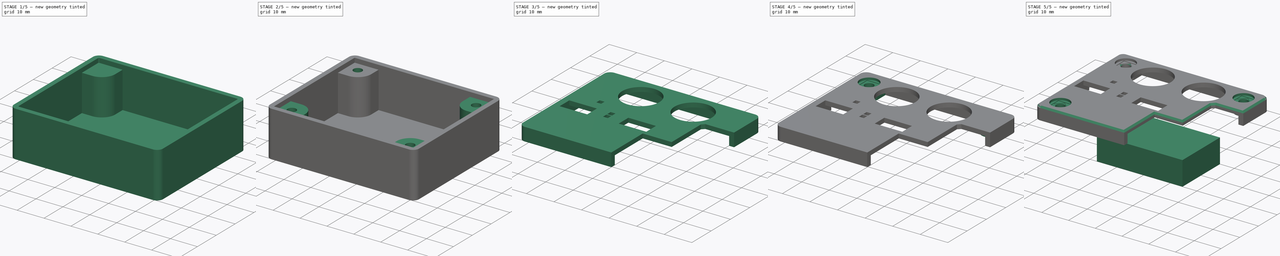
[diagram: build sequence overview — one tinted view per stage of 5, left to right]
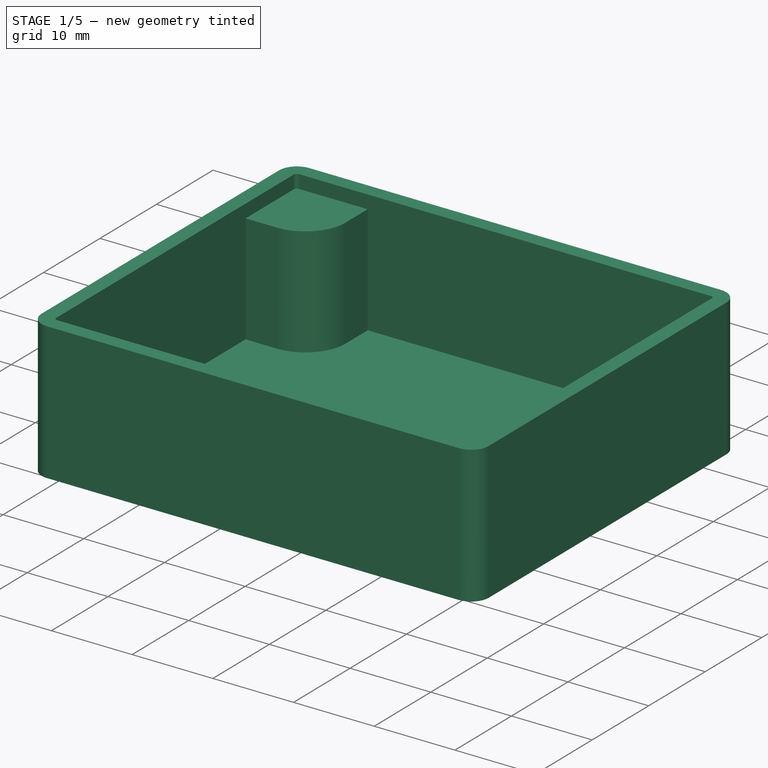
[diagram: stage 1 of 5 — iso view after this stage's code; geometry added in this stage tinted green]
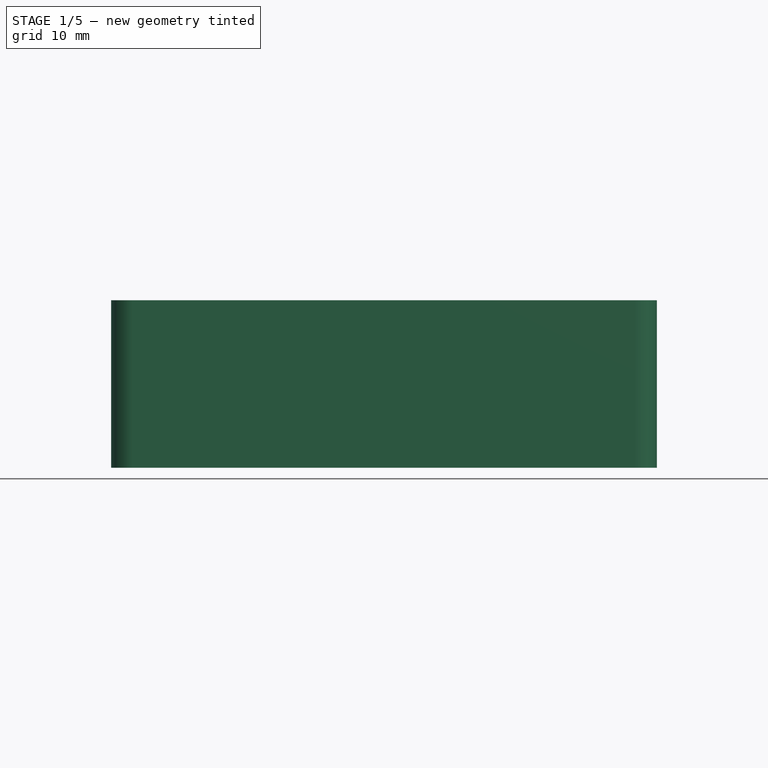
[diagram: stage 1 of 5 — front view after this stage's code; geometry added in this stage tinted green]
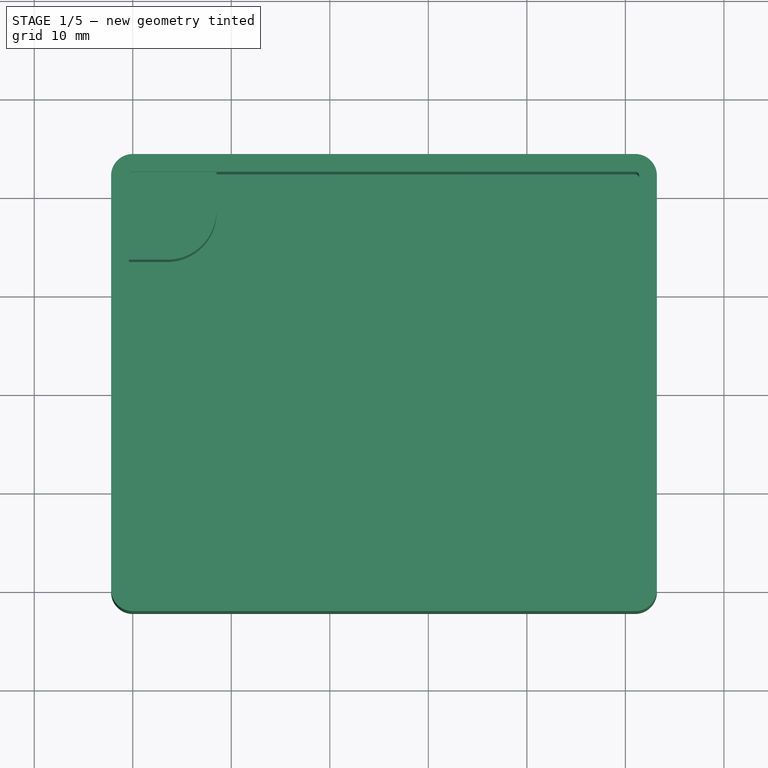
[diagram: stage 1 of 5 — top view after this stage's code; geometry added in this stage tinted green]
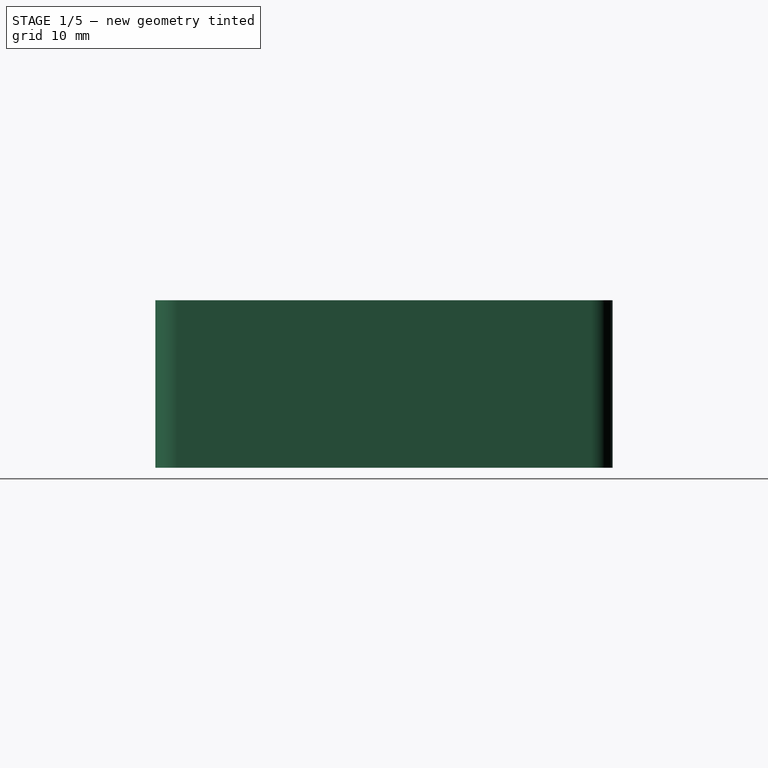
[diagram: stage 1 of 5 — right view after this stage's code; geometry added in this stage tinted green]
FCSTD DOCUMENT  (FreeCAD 0.20R29603 (Git))
Label: SCuSA_RevA1_case
License: All rights reserved
LicenseURL: http://en.wikipedia.org/wiki/All_rights_reserved
objects: Sketcher::SketchObject×17, PartDesign::Pocket×12, PartDesign::SubShapeBinder×7, PartDesign::Plane×7, PartDesign::Pad×5, PartDesign::Mirrored×4, PartDesign::MultiTransform×2, PartDesign::Body×2, App::Link×1, Spreadsheet::Sheet×1, PartDesign::Thickness×1, Part::Box×1, PartDesign::Chamfer×1
note: 78 computed .brp shape members not serialized (recipe doc carries the construction recipe); baked Part::Feature solids carry a one-line shape summary decoded from their .brp
EXTERNAL_REF file=SCuSA_RevA1_PCBA.FCStd obj=Board_3e51

FEATURE [App::Link] Link  label="SCuSA_PCBA"
  LinkedObject = -> <external SCuSA_RevA1_PCBA.FCStd>#Board_3e51
FEATURE [Spreadsheet::Sheet] Spreadsheet
  cells = A1=layer_height; B1(layer_height)=0.4; C1=for 3d printing; A2=wall_thickness; B2(wall_thickness)=1.8; A3=pcb_to_wall_clearance; B3(pcb_to_wall_clearance)=0.4; A4=hex_nut_diameter; B4(hex_nut_diameter)=7.2; A5=hex_nut_pocket_depth; B5(hex_nut_pocket_depth)=10; A6=lid_counter_sunk; B6(lid_counter_sunk)=0.8; A7=lid_layer_height; B7(lid_layer_height)=0.2
FEATURE [PartDesign::SubShapeBinder] Binder  label="PCBA_Binder"
  BindCopyOnChange = 0
  BindMode = 0
  ClaimChildren = false
  Context = -> Body [Binder.]
  Fuse = false
  MakeFace = true
  OffsetFill = false
  OffsetIntersection = false
  OffsetJoinType = 0
  OffsetOpenResult = false
  PartialLoad = false
  Relative = true
  Support = -> [Link[Board_Geoms_3e51.Pcb_3e51.Face46]]
  _Version = 2
FEATURE [Sketcher::SketchObject] Sketch  label="WallSketch"
  ExternalGeometry = -> [Binder]
  FullyConstrained = true
  MapMode = 5
  Support = -> [XY_Plane]
  expr: Constraints[21] = Spreadsheet.wall_thickness + Spreadsheet.pcb_to_wall_clearance
  sketch-geometry (10):
    g0: ArcOfCircle CenterX=0 CenterY=42 CenterZ=0 NormalX=0 NormalY=0 NormalZ=1 AngleXU=0 Radius=2.2 StartAngle=1.5708 EndAngle=3.14159
    g1: LineSegment StartX=-4e-16 StartY=44.2 StartZ=0 EndX=51 EndY=44.2 EndZ=0
    g2: ArcOfCircle CenterX=51 CenterY=42 CenterZ=0 NormalX=0 NormalY=0 NormalZ=1 AngleXU=0 Radius=2.2 StartAngle=-1.8e-15 EndAngle=1.5708
    g3: LineSegment StartX=53.2 StartY=42 StartZ=0 EndX=53.2 EndY=0 EndZ=0
    g4: ArcOfCircle CenterX=51 CenterY=0 CenterZ=0 NormalX=0 NormalY=0 NormalZ=1 AngleXU=0 Radius=2.2 StartAngle=4.71239 EndAngle=6.28319
    g5: LineSegment StartX=51 StartY=-2.2 StartZ=0 EndX=0 EndY=-2.2 EndZ=0
    g6: ArcOfCircle CenterX=-2e-16 CenterY=1e-16 CenterZ=0 NormalX=0 NormalY=0 NormalZ=1 AngleXU=0 Radius=2.2 StartAngle=3.14159 EndAngle=4.71239
    g7: LineSegment StartX=-2.2 StartY=-6e-16 StartZ=0 EndX=-2.2 EndY=42 EndZ=0
    g8: GeomPoint X=-2.2 Y=44.2 Z=0
    g9: GeomPoint X=53.2 Y=-2.2 Z=0
  constraints (22):
    c: Tangent(g0,g1) = 1.5708
    c: Tangent(g1,g2) = 1.5708
    c: Tangent(g2,g3) = 1.5708
    c: Tangent(g3,g4) = 1.5708
    c: Tangent(g4,g5) = 1.5708
    c: Tangent(g5,g6) = 1.5708
    c: Tangent(g6,g7) = 1.5708
    c: Tangent(g7,g0) = 1.5708
    c: Horizontal(g1)
    c: Horizontal(g5)
    c: Vertical(g3)
    c: Vertical(g7)
    c: Equal(g0,g2)
    c: Equal(g2,g4)
    c: Equal(g4,g6)
    c: PointOnObject(g8,g1)
    c: PointOnObject(g8,g7)
    c: PointOnObject(g9,g3)
    c: PointOnObject(g9,g5)
    c: Coincident(g0,g-4)
    c: Coincident(g-6,g4)
    c: DistanceX(g0,g0) = 2.2
FEATURE [PartDesign::Pad] Pad  label="WallPad"
  Direction = (0,0,1)
  Length = 17
  Length2 = 10
  Profile = -> Sketch
  ReferenceAxis = -> Sketch [N_Axis]
  Reversed = true
  Type = 0
FEATURE [PartDesign::Thickness] Thickness
  Base = -> Pad [Face9]
  BaseFeature = -> Pad
  Intersection = false
  Join = 0
  Mode = 0
  Reversed = true
  SupportTransform = false
  Value = 1.8
  expr: Value = Spreadsheet.wall_thickness
FEATURE [Sketcher::SketchObject] Sketch001  label="PCBA_SupportSketch"
  ExternalGeometry = -> [Thickness,Binder]
  FullyConstrained = true
  MapMode = 5
  Placement = pos=(0,0,-15.2) rot=(0,0,1;0rad)
  Support = -> [Thickness]
  sketch-geometry (5):
    g0: ArcOfCircle CenterX=3.5 CenterY=38.5 CenterZ=0 NormalX=0 NormalY=0 NormalZ=1 AngleXU=0 Radius=5 StartAngle=4.71239 EndAngle=6.28319
    g1: LineSegment StartX=3.5 StartY=33.5 StartZ=0 EndX=-0.4 EndY=33.5 EndZ=0
    g2: LineSegment StartX=8.5 StartY=38.5 StartZ=0 EndX=8.5 EndY=42.4 EndZ=0
    g3: LineSegment StartX=8.5 StartY=42.4 StartZ=0 EndX=-0.4 EndY=42.4 EndZ=0
    g4: LineSegment StartX=-0.4 StartY=42.4 StartZ=0 EndX=-0.4 EndY=33.5 EndZ=0
  constraints (13):
    c: Coincident(g0,g-5)
    c: PointOnObject(g1,g-4)
    c: Horizontal(g1)
    c: PointOnObject(g2,g-3)
    c: Vertical(g2)
    c: Radius(g0) = 5
    c: Tangent(g0,g2) = -1.5708
    c: Tangent(g0,g1) = 1.5708
    c: Coincident(g3,g2)
    c: Horizontal(g3)
    c: Coincident(g4,g3)
    c: Coincident(g4,g1)
    c: Vertical(g4)
FEATURE [PartDesign::Plane] DatumPlane  label="PCBA_GapPlane"
  AttachmentOffset = pos=(0,0,-1.65) rot=(0,0,1;0rad)
  Length = 92.9125
  MapMode = 2
  Placement = pos=(0,0,-1.65) rot=(0,0,1;0rad)
  ResizeMode = 0
  Support = -> [Sketch]
  Width = 83.9125
FEATURE [PartDesign::Pad] Pad001  label="PCBA_SupportPad"
  BaseFeature = -> Thickness
  Direction = (0,0,1)
  Length = 10
  Length2 = 10
  Profile = -> Sketch001
  ReferenceAxis = -> Sketch001 [N_Axis]
  Type = 3
  UpToFace = -> DatumPlane
FEATURE [Sketcher::SketchObject] Sketch002  label="HexNutSketch"
  ExternalGeometry = -> [Binder]
  FullyConstrained = true
  MapMode = 5
  Placement = pos=(0,0,-17) rot=(1,0,0;3.14159rad)
  Support = -> [Pad001]
  expr: Constraints[19] = Spreadsheet.hex_nut_diameter
  sketch-geometry (7):
    g0: LineSegment StartX=5.3 StartY=-35.3823 StartZ=0 EndX=1.7 EndY=-35.3823 EndZ=0
    g1: LineSegment StartX=1.7 StartY=-35.3823 StartZ=0 EndX=-0.1 EndY=-38.5 EndZ=0
    g2: LineSegment StartX=-0.1 StartY=-38.5 StartZ=0 EndX=1.7 EndY=-41.6177 EndZ=0
    g3: LineSegment StartX=1.7 StartY=-41.6177 StartZ=0 EndX=5.3 EndY=-41.6177 EndZ=0
    g4: LineSegment StartX=5.3 StartY=-41.6177 StartZ=0 EndX=7.1 EndY=-38.5 EndZ=0
    g5: LineSegment StartX=7.1 StartY=-38.5 StartZ=0 EndX=5.3 EndY=-35.3823 EndZ=0
    g6: Circle CenterX=3.5 CenterY=-38.5 CenterZ=0 NormalX=0 NormalY=0 NormalZ=1 AngleXU=0 Radius=3.6
  constraints (16):
    c: Coincident(g0,g1)
    c: Coincident(g1,g2)
    c: Coincident(g2,g3)
    c: Coincident(g3,g4)
    c: Coincident(g4,g5)
    c: Coincident(g5,g0)
    c: Equal(g0, g1-g5) x5
    c: PointOnObject(g0,g6)
    c: PointOnObject(g1,g6)
    c: PointOnObject(g2,g6)
    c: PointOnObject(g3,g6)
    c: PointOnObject(g4,g6)
    c: PointOnObject(g5,g6)
    c: Coincident(g6,g-3)
    c: Horizontal(g3)
    c: DistanceX(g1,g4) = 7.2
FEATURE [PartDesign::Pocket] Pocket  label="HexNutPocket"
  BaseFeature = -> Pad001
  Direction = (0,0,1)
  Length = 10
  Length2 = 5
  Profile = -> Sketch002
  ReferenceAxis = -> Sketch002 [N_Axis]
  Type = 0
  expr: Length = Spreadsheet.hex_nut_pocket_depth
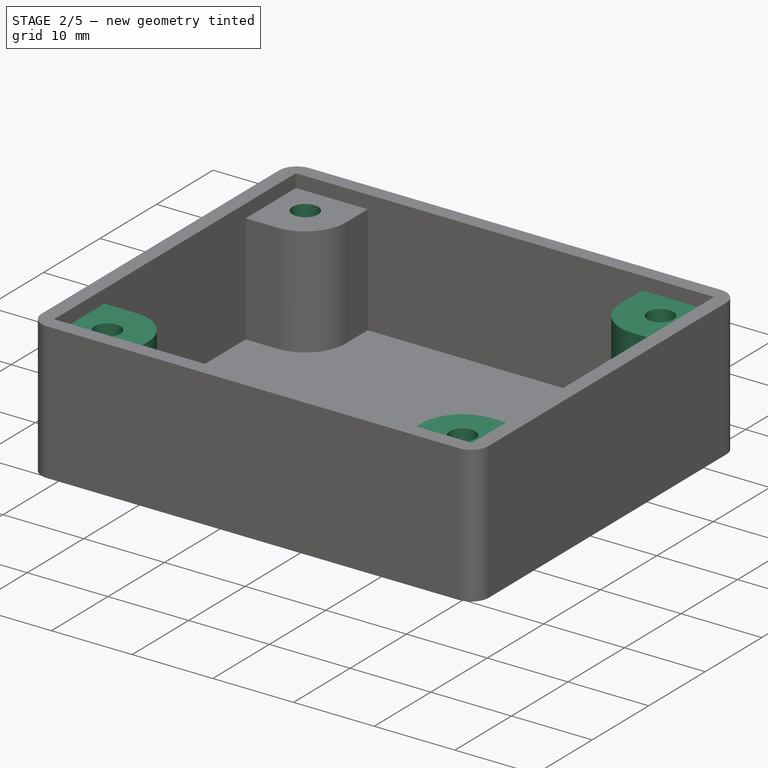
[diagram: stage 2 of 5 — iso view after this stage's code; geometry added in this stage tinted green]
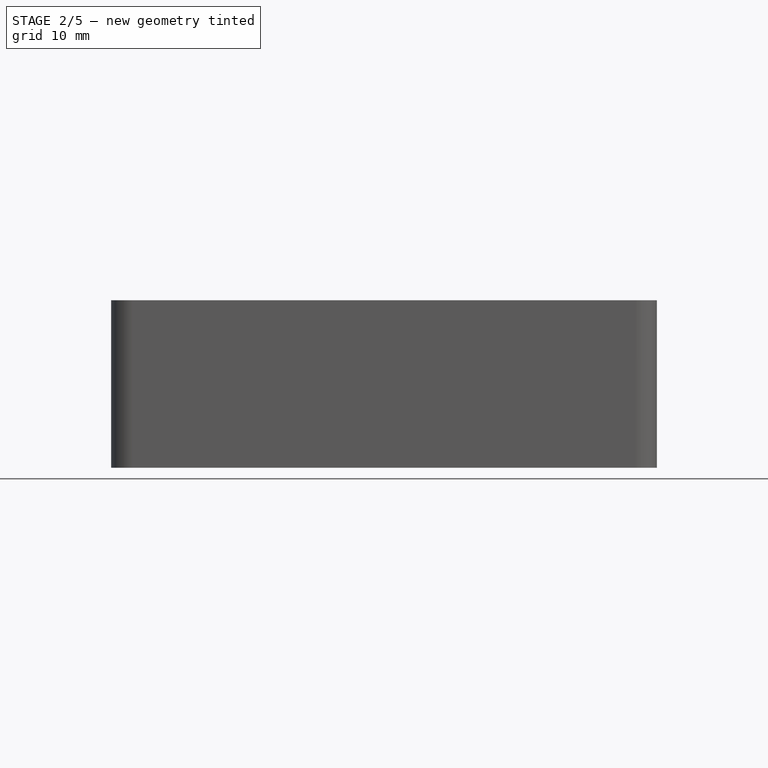
[diagram: stage 2 of 5 — front view after this stage's code; geometry added in this stage tinted green]
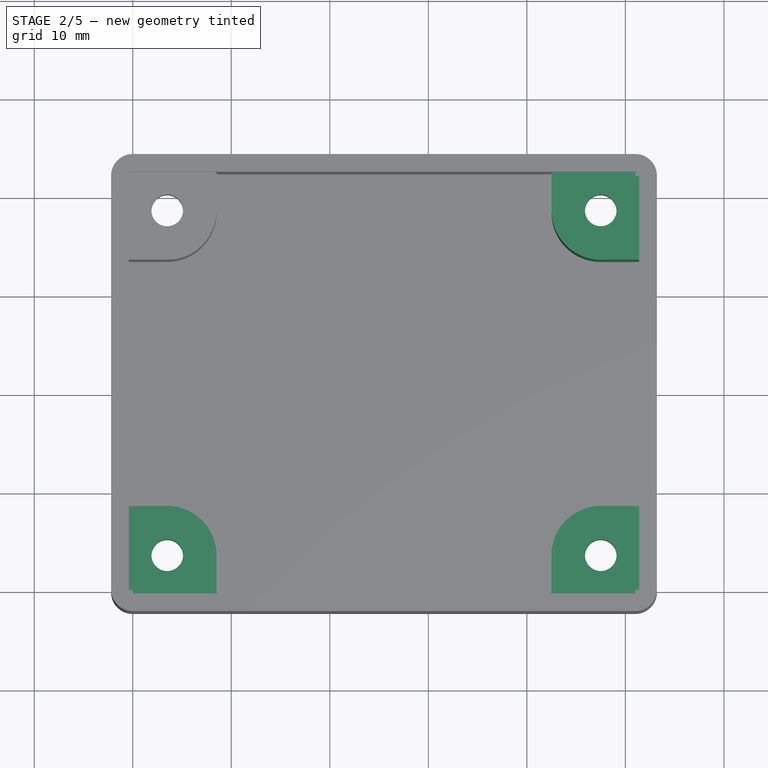
[diagram: stage 2 of 5 — top view after this stage's code; geometry added in this stage tinted green]
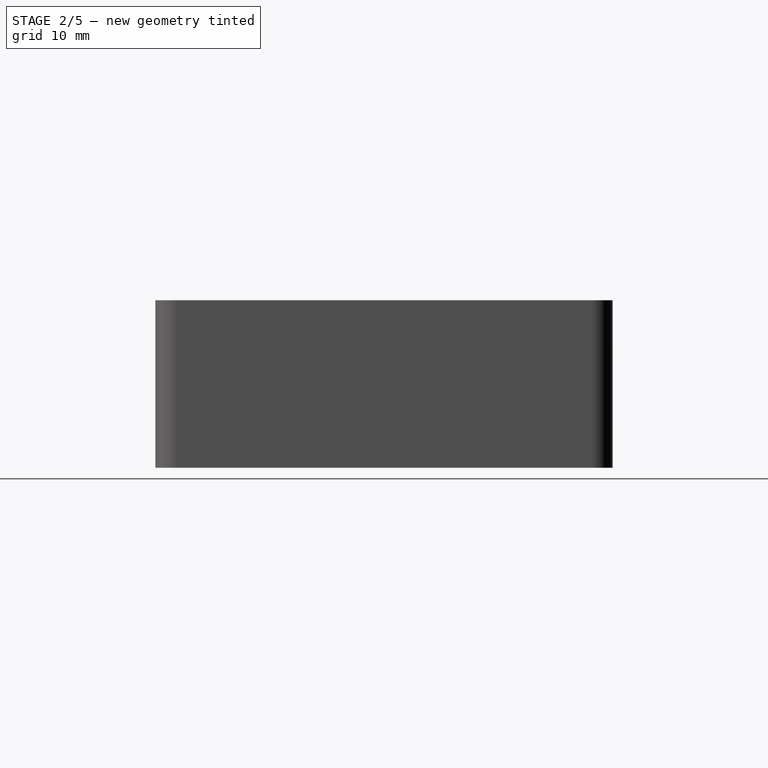
[diagram: stage 2 of 5 — right view after this stage's code; geometry added in this stage tinted green]
FEATURE [Sketcher::SketchObject] Sketch003  label="HexNutMidAir1Sketch"
  ExternalGeometry = -> [Binder,Sketch002]
  FullyConstrained = true
  MapMode = 5
  Placement = pos=(0,0,-7) rot=(1,0,0;3.14159rad)
  Support = -> [Pocket]
  sketch-geometry (7):
    g0: LineSegment StartX=6.2 StartY=-40.0588 StartZ=0 EndX=6.2 EndY=-36.9412 EndZ=0
    g1: LineSegment StartX=6.2 StartY=-36.9412 StartZ=0 EndX=3.5 EndY=-35.3823 EndZ=0
    g2: LineSegment StartX=3.5 StartY=-35.3823 StartZ=0 EndX=0.8 EndY=-36.9412 EndZ=0
    g3: LineSegment StartX=0.8 StartY=-36.9412 StartZ=0 EndX=0.8 EndY=-40.0588 EndZ=0
    g4: LineSegment StartX=0.8 StartY=-40.0588 StartZ=0 EndX=3.5 EndY=-41.6177 EndZ=0
    g5: LineSegment StartX=3.5 StartY=-41.6177 StartZ=0 EndX=6.2 EndY=-40.0588 EndZ=0
    g6: Circle CenterX=3.5 CenterY=-38.5 CenterZ=0 NormalX=0 NormalY=0 NormalZ=1 AngleXU=0 Radius=3.11769
  constraints (16):
    c: Coincident(g0,g1)
    c: Coincident(g1,g2)
    c: Coincident(g2,g3)
    c: Coincident(g3,g4)
    c: Coincident(g4,g5)
    c: Coincident(g5,g0)
    c: Equal(g0, g1-g5) x5
    c: PointOnObject(g0,g6)
    c: PointOnObject(g1,g6)
    c: PointOnObject(g2,g6)
    c: PointOnObject(g3,g6)
    c: PointOnObject(g4,g6)
    c: PointOnObject(g5,g6)
    c: Coincident(g6,g-3)
    c: Vertical(g3)
    c: PointOnObject(g4,g-5)
FEATURE [Sketcher::SketchObject] Sketch005  label="HexNutHoleSketch"
  ExternalGeometry = -> [Binder]
  FullyConstrained = true
  MapMode = 5
  Placement = pos=(0,0,-16) rot=(1,0,0;3.14159rad)
  sketch-geometry (1):
    g0: Circle CenterX=3.5 CenterY=-38.5 CenterZ=0 NormalX=0 NormalY=0 NormalZ=1 AngleXU=0 Radius=1.6
  constraints (2):
    c: Coincident(g0,g-3)
    c: Equal(g0,g-3)
FEATURE [PartDesign::Pocket] Pocket001  label="HexNutMidAir1Pocket"
  BaseFeature = -> Pocket
  Direction = (0,0,1)
  Length = 0.4
  Length2 = 5
  Profile = -> Sketch003
  ReferenceAxis = -> Sketch003 [N_Axis]
  Type = 0
  expr: Length = Spreadsheet.layer_height
FEATURE [Sketcher::SketchObject] Sketch006  label="HexNutMidAir2Sketch"
  ExternalGeometry = -> [Binder,Sketch003]
  FullyConstrained = true
  MapMode = 5
  Placement = pos=(0,0,-6.6) rot=(1,0,0;3.14159rad)
  Support = -> [Pocket001]
  sketch-geometry (7):
    g0: LineSegment StartX=4.85 StartY=-40.8383 StartZ=0 EndX=6.2 EndY=-38.5 EndZ=0
    g1: LineSegment StartX=6.2 StartY=-38.5 StartZ=0 EndX=4.85 EndY=-36.1617 EndZ=0
    g2: LineSegment StartX=4.85 StartY=-36.1617 StartZ=0 EndX=2.15 EndY=-36.1617 EndZ=0
    g3: LineSegment StartX=2.15 StartY=-36.1617 StartZ=0 EndX=0.8 EndY=-38.5 EndZ=0
    g4: LineSegment StartX=0.8 StartY=-38.5 StartZ=0 EndX=2.15 EndY=-40.8383 EndZ=0
    g5: LineSegment StartX=2.15 StartY=-40.8383 StartZ=0 EndX=4.85 EndY=-40.8383 EndZ=0
    g6: Circle CenterX=3.5 CenterY=-38.5 CenterZ=0 NormalX=0 NormalY=0 NormalZ=1 AngleXU=0 Radius=2.7
  constraints (16):
    c: Coincident(g0,g1)
    c: Coincident(g1,g2)
    c: Coincident(g2,g3)
    c: Coincident(g3,g4)
    c: Coincident(g4,g5)
    c: Coincident(g5,g0)
    c: Equal(g0, g1-g5) x5
    c: PointOnObject(g0,g6)
    c: PointOnObject(g1,g6)
    c: PointOnObject(g2,g6)
    c: PointOnObject(g3,g6)
    c: PointOnObject(g4,g6)
    c: PointOnObject(g5,g6)
    c: Coincident(g6,g-3)
    c: PointOnObject(g0,g-4)
    c: Horizontal(g5)
FEATURE [PartDesign::Pocket] Pocket004  label="HexNutMidAir2Pocket"
  BaseFeature = -> Pocket001
  Direction = (0,0,1)
  Length = 0.4
  Length2 = 5
  Profile = -> Sketch006
  ReferenceAxis = -> Sketch006 [N_Axis]
  Type = 0
  expr: Length = Spreadsheet.layer_height
FEATURE [PartDesign::Pocket] Pocket003  label="HexNutHolePocket"
  BaseFeature = -> Pocket004
  Direction = (0,0,1)
  Length = 5
  Length2 = 5
  Profile = -> Sketch005
  ReferenceAxis = -> Sketch005 [N_Axis]
  Type = 1
FEATURE [PartDesign::Plane] DatumPlane001  label="MirrorPlaneZY"
  AttachmentOffset = pos=(0,0,0) rot=(1,0,0;1.5708rad)
  Length = 80.9644
  MapMode = 45
  Placement = pos=(25.5,21,0) rot=(0.57735,0.57735,0.57735;2.0944rad)
  ResizeMode = 0
  Support = -> [Binder]
  Width = 61.7644
FEATURE [PartDesign::Plane] DatumPlane002  label="MirrorPlaneZX"
  AttachmentOffset = pos=(0,0,0) rot=(1,0,0;1.5708rad)
  Length = 90.706
  MapMode = 45
  Placement = pos=(25.5,21,0) rot=(1,0,0;1.5708rad)
  ResizeMode = 0
  Support = -> [Binder]
  Width = 62.506
FEATURE [PartDesign::Mirrored] Mirrored
  MirrorPlane = -> DatumPlane002
FEATURE [PartDesign::Mirrored] Mirrored001
  MirrorPlane = -> DatumPlane001
FEATURE [PartDesign::MultiTransform] MultiTransform
  BaseFeature = -> Pocket003
  Originals = -> [Pad001,Pocket,Pocket001,Pocket004,Pocket003]
  Transformations = -> [Mirrored,Mirrored001]
FEATURE [PartDesign::Plane] DatumPlane003  label="SupportPadDatumPlane"
  Length = 92.9125
  MapMode = 5
  Placement = pos=(0,0,-1.65) rot=(0,0,1;0rad)
  ResizeMode = 0
  Support = -> [MultiTransform]
  Width = 83.9125
FEATURE [Sketcher::SketchObject] Sketch009  label="CornerCutSketch"
  ExternalGeometry = -> [Thickness]
  FullyConstrained = true
  MapMode = 5
  Placement = pos=(0,0,-1.65) rot=(0,0,1;0rad)
  Support = -> [DatumPlane003]
  sketch-geometry (16):
    g0: LineSegment StartX=0 StartY=42 StartZ=0 EndX=-0.4 EndY=42 EndZ=0
    g1: LineSegment StartX=-0.4 StartY=42 StartZ=0 EndX=-0.4 EndY=42.4 EndZ=0
    g2: LineSegment StartX=-0.4 StartY=42.4 StartZ=0 EndX=0 EndY=42.4 EndZ=0
    g3: LineSegment StartX=0 StartY=42.4 StartZ=0 EndX=0 EndY=42 EndZ=0
    g4: LineSegment StartX=51.4 StartY=42 StartZ=0 EndX=51 EndY=42 EndZ=0
    g5: LineSegment StartX=51 StartY=42 StartZ=0 EndX=51 EndY=42.4 EndZ=0
    g6: LineSegment StartX=51 StartY=42.4 StartZ=0 EndX=51.4 EndY=42.4 EndZ=0
    g7: LineSegment StartX=51.4 StartY=42.4 StartZ=0 EndX=51.4 EndY=42 EndZ=0
    g8: LineSegment StartX=0 StartY=-0.4 StartZ=0 EndX=-0.4 EndY=-0.4 EndZ=0
    g9: LineSegment StartX=-0.4 StartY=-0.4 StartZ=0 EndX=-0.4 EndY=0 EndZ=0
    g10: LineSegment StartX=-0.4 StartY=0 StartZ=0 EndX=0 EndY=0 EndZ=0
    g11: LineSegment StartX=0 StartY=0 StartZ=0 EndX=0 EndY=-0.4 EndZ=0
    g12: LineSegment StartX=51 StartY=-0.4 StartZ=0 EndX=51.4 EndY=-0.4 EndZ=0
    g13: LineSegment StartX=51.4 StartY=-0.4 StartZ=0 EndX=51.4 EndY=0 EndZ=0
    g14: LineSegment StartX=51.4 StartY=0 StartZ=0 EndX=51 EndY=0 EndZ=0
    g15: LineSegment StartX=51 StartY=0 StartZ=0 EndX=51 EndY=-0.4 EndZ=0
  constraints (39):
    c: Coincident(g0,g1)
    c: Coincident(g1,g2)
    c: Coincident(g2,g3)
    c: Coincident(g3,g0)
    c: Horizontal(g2)
    c: Vertical(g1)
    c: Coincident(g0,g-3)
    c: Coincident(g0,g-3)
    c: Coincident(g2,g-3)
    c: Coincident(g4,g5)
    c: Coincident(g5,g6)
    c: Coincident(g6,g7)
    c: Coincident(g7,g4)
    c: Horizontal(g4)
    c: Horizontal(g6)
    c: Vertical(g5)
    c: Vertical(g7)
    c: Coincident(g4,g-4)
    c: Coincident(g5,g-4)
    c: Coincident(g8,g9)
    c: Coincident(g9,g10)
    c: Coincident(g10,g11)
    c: Coincident(g11,g8)
    c: Horizontal(g8)
    c: Horizontal(g10)
    c: Vertical(g9)
    c: Vertical(g11)
    c: Coincident(g8,g-6)
    c: Coincident(g9,g-6)
    c: Coincident(g12,g13)
    c: Coincident(g13,g14)
    c: Coincident(g14,g15)
    c: Coincident(g15,g12)
    c: Horizontal(g12)
    c: Horizontal(g14)
    c: Vertical(g13)
    c: Vertical(g15)
    c: Coincident(g12,g-5)
    c: Coincident(g13,g-5)
FEATURE [PartDesign::Pocket] Pocket006  label="CornerCutPocket"
  BaseFeature = -> MultiTransform
  Direction = (0,0,-1)
  Length = 5
  Length2 = 5
  Profile = -> Sketch009
  ReferenceAxis = -> Sketch009 [N_Axis]
  Reversed = true
  Type = 1
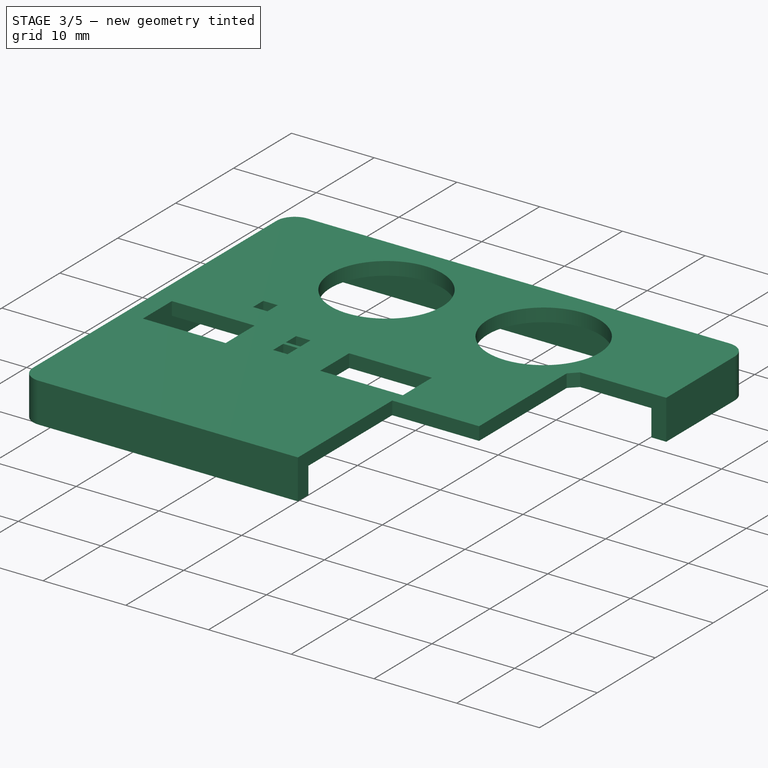
[diagram: stage 3 of 5 — iso view after this stage's code; geometry added in this stage tinted green]
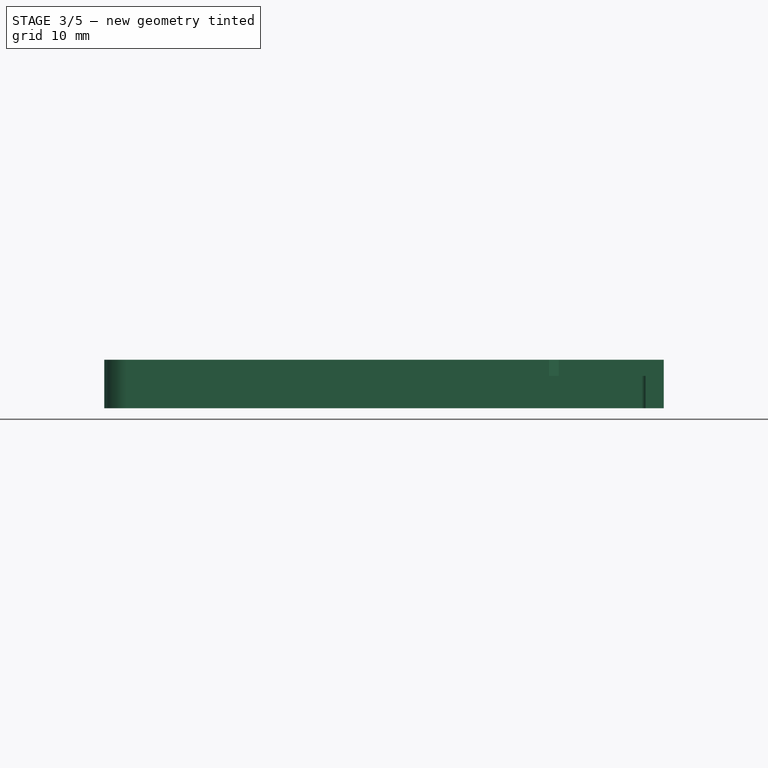
[diagram: stage 3 of 5 — front view after this stage's code; geometry added in this stage tinted green]
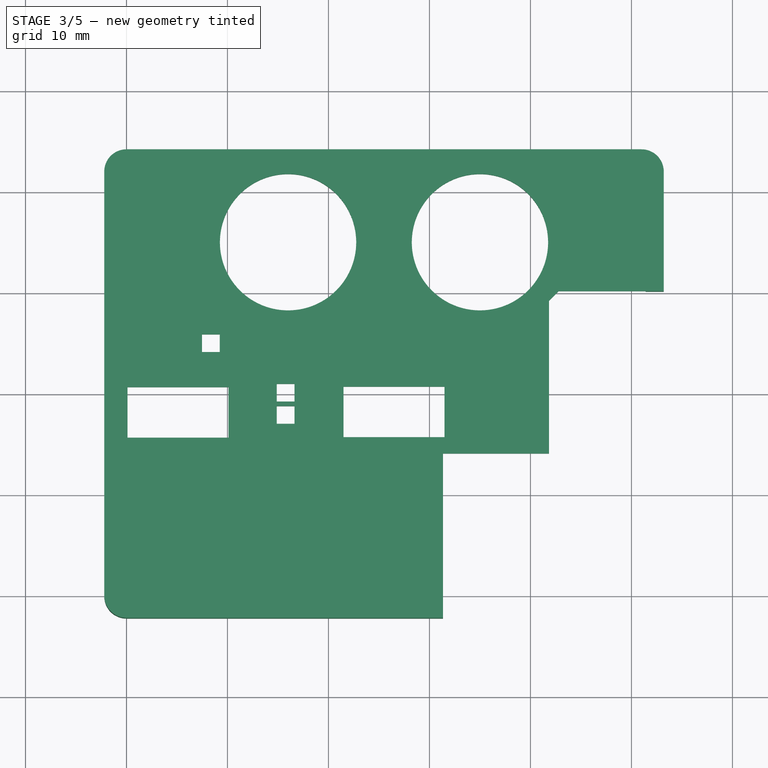
[diagram: stage 3 of 5 — top view after this stage's code; geometry added in this stage tinted green]
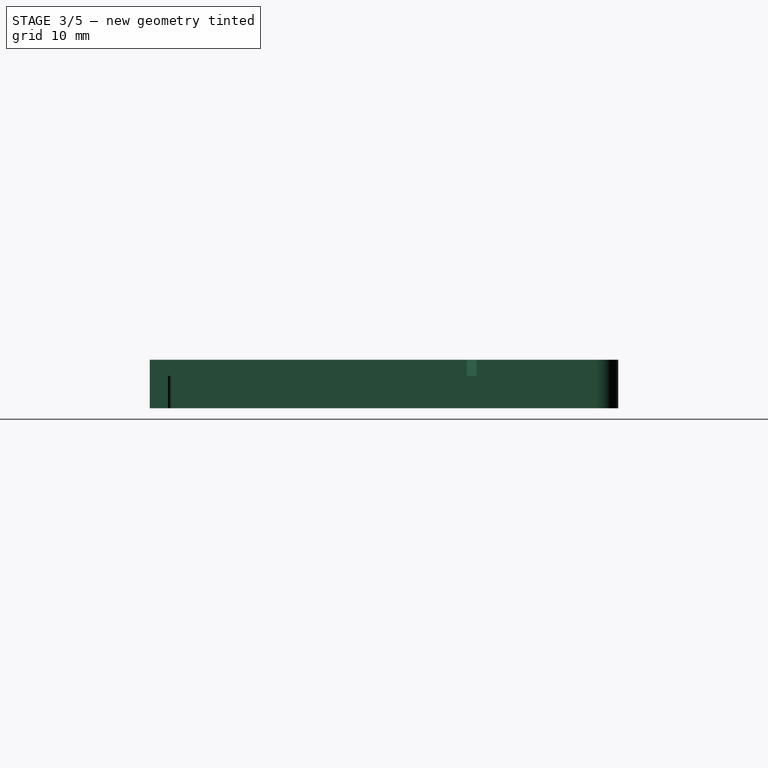
[diagram: stage 3 of 5 — right view after this stage's code; geometry added in this stage tinted green]
FEATURE [PartDesign::SubShapeBinder] Binder001  label="CaseWallBinder"
  BindCopyOnChange = 0
  BindMode = 0
  ClaimChildren = false
  Context = -> Body001 [Binder001.]
  Fuse = false
  MakeFace = true
  OffsetFill = false
  OffsetIntersection = false
  OffsetJoinType = 0
  OffsetOpenResult = false
  PartialLoad = false
  Relative = true
  Support = -> [Body[MultiTransform.Face4]]
  _Version = 2
FEATURE [PartDesign::Pad] Pad002  label="WallsPad"
  Direction = (0,0,1)
  Length = 4.8
  Length2 = 10
  Profile = -> Binder001 [Face1]
  Type = 0
FEATURE [Sketcher::SketchObject] Sketch007  label="Top"
  ExternalGeometry = -> [Pad002]
  FullyConstrained = true
  MapMode = 5
  Placement = pos=(0,0,4.8) rot=(0,0,1;0rad)
  Support = -> [Pad002]
  sketch-geometry (4):
    g0: LineSegment StartX=-0.4 StartY=42.4 StartZ=0 EndX=51.4 EndY=42.4 EndZ=0
    g1: LineSegment StartX=51.4 StartY=42.4 StartZ=0 EndX=51.4 EndY=-0.4 EndZ=0
    g2: LineSegment StartX=51.4 StartY=-0.4 StartZ=0 EndX=-0.4 EndY=-0.4 EndZ=0
    g3: LineSegment StartX=-0.4 StartY=-0.4 StartZ=0 EndX=-0.4 EndY=42.4 EndZ=0
  constraints (12):
    c: Coincident(g0,g1)
    c: Coincident(g1,g2)
    c: Coincident(g2,g3)
    c: Coincident(g3,g0)
    c: Horizontal(g0)
    c: Horizontal(g2)
    c: Vertical(g1)
    c: Vertical(g3)
    c: PointOnObject(g-5,g2)
    c: PointOnObject(g-6,g1)
    c: PointOnObject(g-4,g3)
    c: PointOnObject(g-3,g0)
FEATURE [PartDesign::Pad] Pad003  label="TopPad"
  BaseFeature = -> Pad002
  Direction = (0,0,1)
  Length = 1.6
  Length2 = 10
  Profile = -> Sketch007
  ReferenceAxis = -> Sketch007 [N_Axis]
  Reversed = true
  Type = 0
  expr: Length = 1.6
FEATURE [Sketcher::SketchObject] Sketch010  label="BatConCutoutSketch"
  FullyConstrained = false
  MapMode = 5
  Placement = pos=(0,0,-1.65) rot=(0,0,1;0rad)
  Support = -> [DatumPlane003]
  sketch-geometry (4):
    g0: LineSegment StartX=9.01115 StartY=0.4 StartZ=0 EndX=7 EndY=0.4 EndZ=0
    g1: LineSegment StartX=7 StartY=0.4 StartZ=0 EndX=7 EndY=9.42923 EndZ=0
    g2: LineSegment StartX=7 StartY=9.42923 StartZ=0 EndX=9.01115 EndY=9.42923 EndZ=0
    g3: LineSegment StartX=9.01115 StartY=9.42923 StartZ=0 EndX=9.01115 EndY=0.4 EndZ=0
  constraints (10):
    c: Coincident(g0,g1)
    c: Coincident(g1,g2)
    c: Coincident(g2,g3)
    c: Coincident(g3,g0)
    c: Horizontal(g0)
    c: Horizontal(g2)
    c: Vertical(g1)
    c: Vertical(g3)
    c: DistanceY(g-1,g0) = 0.4
    c: DistanceX(g-1,g0) = 7
FEATURE [PartDesign::Pocket] Pocket007  label="BatConCutoutPocket"
  BaseFeature = -> Pocket006
  Direction = (0,0,-1)
  Length = 5
  Length2 = 5
  Profile = -> Sketch010
  ReferenceAxis = -> Sketch010 [N_Axis]
  Type = 0
FEATURE [PartDesign::Body] Body  label="Case"
  Group = -> [Sketch,Binder,Pad,Thickness,Sketch001,DatumPlane,Pad001,Sketch002,Pocket,Sketch003,Pocket001,Sketch005,Sketch006,Pocket004,Pocket003,DatumPlane001,DatumPlane002,MultiTransform,Mirrored,Mirrored001,Sketch009,DatumPlane003,Pocket006,Sketch010,Pocket007]
  Origin = -> Origin
  Tip = -> Pocket007
FEATURE [PartDesign::SubShapeBinder] Binder003  label="CutoutBinder"
  BindCopyOnChange = 0
  BindMode = 0
  ClaimChildren = false
  Fuse = false
  MakeFace = true
  OffsetFill = false
  OffsetIntersection = false
  OffsetJoinType = 0
  OffsetOpenResult = false
  PartialLoad = false
  Relative = true
  Support = -> [Link[Board_Geoms_3e51.Pcb_3e51.Edge74,Board_Geoms_3e51.Pcb_3e51.Edge14,Board_Geoms_3e51.Pcb_3e51.Edge125,Board_Geoms_3e51.Pcb_3e51.Edge134,Step_Models_3e51.Top_3e51.Shape007.Edge312,Step_Models_3e51.Top_3e51.Shape007.Edge147,Step_Models_3e51.Top_3e51.Shape007.Edge440,Step_Models_3e51.Top_3e51.Shape007.Edge152]]
  _Version = 2
FEATURE [PartDesign::SubShapeBinder] Binder004  label="CoaxBinder"
  BindCopyOnChange = 0
  BindMode = 0
  ClaimChildren = false
  Context = -> Body001 [Binder004.]
  Fuse = false
  MakeFace = true
  OffsetFill = false
  OffsetIntersection = false
  OffsetJoinType = 0
  OffsetOpenResult = false
  PartialLoad = false
  Relative = true
  Support = -> [Link[Step_Models_3e51.Top_3e51.Shape009.Face18],Binder007]
  _Version = 2
FEATURE [Sketcher::SketchObject] Sketch011  label="CutoutsSketch"
  ExternalGeometry = -> [Binder003,Binder001,Binder004]
  FullyConstrained = true
  MapMode = 5
  Support = -> [XY_Plane001]
  sketch-geometry (59):
    g0: LineSegment StartX=0.1075 StartY=20.65 StartZ=0 EndX=10.1075 EndY=20.65 EndZ=0
    g1: LineSegment StartX=10.1075 StartY=20.65 StartZ=0 EndX=10.1075 EndY=15.65 EndZ=0
    g2: LineSegment StartX=10.1075 StartY=15.65 StartZ=0 EndX=0.1075 EndY=15.65 EndZ=0
    g3: LineSegment StartX=0.1075 StartY=15.65 StartZ=0 EndX=0.1075 EndY=20.65 EndZ=0
    g4: LineSegment StartX=21.4925 StartY=20.7 StartZ=0 EndX=31.4925 EndY=20.7 EndZ=0
    g5: LineSegment StartX=31.4925 StartY=20.7 StartZ=0 EndX=31.4925 EndY=15.7 EndZ=0
    g6: LineSegment StartX=31.4925 StartY=15.7 StartZ=0 EndX=21.4925 EndY=15.7 EndZ=0
    g7: LineSegment StartX=21.4925 StartY=15.7 StartZ=0 EndX=21.4925 EndY=20.7 EndZ=0
    g8: LineSegment StartX=7.485 StartY=25.875 StartZ=0 EndX=9.235 EndY=25.875 EndZ=0
    g9: LineSegment StartX=9.235 StartY=25.875 StartZ=0 EndX=9.235 EndY=24.125 EndZ=0
    g10: LineSegment StartX=9.235 StartY=24.125 StartZ=0 EndX=7.485 EndY=24.125 EndZ=0
    g11: LineSegment StartX=7.485 StartY=24.125 StartZ=0 EndX=7.485 EndY=25.875 EndZ=0
    g12: LineSegment StartX=14.885 StartY=20.975 StartZ=0 EndX=16.635 EndY=20.975 EndZ=0
    g13: LineSegment StartX=16.635 StartY=20.975 StartZ=0 EndX=16.635 EndY=19.225 EndZ=0
    g14: LineSegment StartX=16.635 StartY=19.225 StartZ=0 EndX=14.885 EndY=19.225 EndZ=0
    g15: LineSegment StartX=14.885 StartY=19.225 StartZ=0 EndX=14.885 EndY=20.975 EndZ=0
    g16: LineSegment StartX=14.885 StartY=18.775 StartZ=0 EndX=16.635 EndY=18.775 EndZ=0
    g17: LineSegment StartX=16.635 StartY=18.775 StartZ=0 EndX=16.635 EndY=17.025 EndZ=0
    g18: LineSegment StartX=16.635 StartY=17.025 StartZ=0 EndX=14.885 EndY=17.025 EndZ=0
    g19: LineSegment StartX=14.885 StartY=17.025 StartZ=0 EndX=14.885 EndY=18.775 EndZ=0
    g20: LineSegment StartX=7.815 StartY=25.625 StartZ=0 EndX=7.815 EndY=25.875 EndZ=0
    g21: LineSegment StartX=15.215 StartY=20.725 StartZ=0 EndX=15.215 EndY=20.975 EndZ=0
    g22: LineSegment StartX=15.215 StartY=18.525 StartZ=0 EndX=15.215 EndY=18.775 EndZ=0
    g23: LineSegment StartX=7.815 StartY=24.375 StartZ=0 EndX=7.815 EndY=24.125 EndZ=0
    g24: LineSegment StartX=15.215 StartY=19.475 StartZ=0 EndX=15.215 EndY=19.225 EndZ=0
    g25: LineSegment StartX=15.215 StartY=17.275 StartZ=0 EndX=15.215 EndY=17.025 EndZ=0
    g26: LineSegment StartX=16.385 StartY=17.275 StartZ=0 EndX=16.635 EndY=17.275 EndZ=0
    g27: LineSegment StartX=16.385 StartY=19.475 StartZ=0 EndX=16.635 EndY=19.475 EndZ=0
    g28: LineSegment StartX=8.985 StartY=24.375 StartZ=0 EndX=9.235 EndY=24.375 EndZ=0
    g29: LineSegment StartX=2.1075 StartY=19.94 StartZ=0 EndX=2.1075 EndY=20.65 EndZ=0
    g30: LineSegment StartX=0.6575 StartY=19.25 StartZ=0 EndX=0.1075 EndY=19.25 EndZ=0
    g31: LineSegment StartX=22.0425 StartY=19.3 StartZ=0 EndX=21.4925 EndY=19.3 EndZ=0
    g32: LineSegment StartX=23.4925 StartY=19.99 StartZ=0 EndX=23.4925 EndY=20.7 EndZ=0
    g33: LineSegment StartX=23.4925 StartY=16.41 StartZ=0 EndX=23.4925 EndY=15.7 EndZ=0
    g34: LineSegment StartX=2.1075 StartY=16.36 StartZ=0 EndX=2.1075 EndY=15.65 EndZ=0
    g35: LineSegment StartX=9.5575 StartY=19.25 StartZ=0 EndX=10.1075 EndY=19.25 EndZ=0
    g36: LineSegment StartX=30.9425 StartY=19.3 StartZ=0 EndX=31.4925 EndY=19.3 EndZ=0
    g37: LineSegment StartX=31.34 StartY=14.075 StartZ=0 EndX=41.84 EndY=14.075 EndZ=0
    g38: LineSegment StartX=41.84 StartY=1.275 StartZ=0 EndX=31.34 EndY=1.275 EndZ=0
    g39: LineSegment StartX=31.34 StartY=1.275 StartZ=0 EndX=31.34 EndY=14.075 EndZ=0
    g40: LineSegment StartX=31.825 StartY=11.79 StartZ=0 EndX=31.825 EndY=14.075 EndZ=0
    g41: LineSegment StartX=31.825 StartY=1.76 StartZ=0 EndX=31.825 EndY=1.275 EndZ=0
    g42: LineSegment StartX=31.825 StartY=1.76 StartZ=0 EndX=31.34 EndY=1.76 EndZ=0
    g43: LineSegment StartX=41.355 StartY=1.76 StartZ=0 EndX=41.84 EndY=1.76 EndZ=0
    g44: LineSegment StartX=41.84 StartY=14.075 StartZ=0 EndX=41.84 EndY=29.2 EndZ=0
    g45: LineSegment StartX=41.84 StartY=29.2 StartZ=0 EndX=42.8 EndY=30.16 EndZ=0
    g46: LineSegment StartX=42.8 StartY=30.16 StartZ=0 EndX=53.2 EndY=30.16 EndZ=0
    g47: LineSegment StartX=31.34 StartY=1.275 StartZ=0 EndX=31.34 EndY=-2.2 EndZ=0
    g48: LineSegment StartX=31.34 StartY=-2.2 StartZ=0 EndX=41.84 EndY=-2.2 EndZ=0
    g49: LineSegment StartX=41.84 StartY=-2.2 StartZ=0 EndX=41.84 EndY=1.275 EndZ=0
    g50: LineSegment StartX=42.8 StartY=29.5 StartZ=0 EndX=42.8 EndY=30.16 EndZ=0
    g51: LineSegment StartX=41.84 StartY=29.2 StartZ=0 EndX=42.5 EndY=29.2 EndZ=0
    g52: LineSegment StartX=41.84 StartY=-2.2 StartZ=0 EndX=53.2 EndY=-2.2 EndZ=0
    g53: LineSegment StartX=53.2 StartY=30.16 StartZ=0 EndX=53.2 EndY=-2.2 EndZ=0
    g54: LineSegment StartX=41.84 StartY=1.275 StartZ=0 EndX=41.84 EndY=14.075 EndZ=0
    g55: Circle CenterX=16 CenterY=35 CenterZ=0 NormalX=0 NormalY=0 NormalZ=1 AngleXU=0 Radius=6.75
    g56: LineSegment StartX=16 StartY=41.15 StartZ=0 EndX=16 EndY=41.75 EndZ=0
    g57: Circle CenterX=35 CenterY=35 CenterZ=0 NormalX=0 NormalY=0 NormalZ=1 AngleXU=0 Radius=6.75
    g58: LineSegment StartX=35 StartY=41.15 StartZ=0 EndX=35 EndY=41.75 EndZ=0
  constraints (171):
    c: Coincident(g0,g1)
    c: Coincident(g1,g2)
    c: Coincident(g2,g3)
    c: Coincident(g3,g0)
    c: Horizontal(g0)
    c: Horizontal(g2)
    c: Vertical(g1)
    c: Vertical(g3)
    c: Coincident(g4,g5)
    c: Coincident(g5,g6)
    c: Coincident(g6,g7)
    c: Coincident(g7,g4)
    c: Horizontal(g4)
    c: Horizontal(g6)
    c: Vertical(g5)
    c: Vertical(g7)
    c: Coincident(g8,g9)
    c: Coincident(g9,g10)
    c: Coincident(g10,g11)
    c: Coincident(g11,g8)
    c: Horizontal(g8)
    c: Horizontal(g10)
    c: Vertical(g9)
    c: Vertical(g11)
    c: Coincident(g12,g13)
    c: Coincident(g13,g14)
    c: Coincident(g14,g15)
    c: Coincident(g15,g12)
    c: Horizontal(g12)
    c: Horizontal(g14)
    c: Vertical(g13)
    c: Vertical(g15)
    c: Coincident(g16,g17)
    c: Coincident(g17,g18)
    c: Coincident(g18,g19)
    c: Coincident(g19,g16)
    c: Horizontal(g16)
    c: Horizontal(g18)
    c: Vertical(g17)
    c: Vertical(g19)
    c: Equal(g10,g9)
    c: Equal(g9,g14)
    c: Equal(g14,g13)
    c: Equal(g13,g17)
    c: Equal(g17,g18)
    c: Coincident(g20,g-3)
    c: PointOnObject(g20,g8)
    c: Vertical(g20)
    c: Coincident(g21,g-4)
    c: PointOnObject(g21,g12)
    c: Vertical(g21)
    c: Coincident(g22,g-5)
    c: PointOnObject(g22,g16)
    c: Vertical(g22)
    c: Coincident(g23,g-6)
    c: PointOnObject(g23,g10)
    c: Vertical(g23)
    c: Coincident(g24,g-7)
    c: PointOnObject(g24,g14)
    c: Vertical(g24)
    c: Coincident(g25,g-8)
    c: PointOnObject(g25,g18)
    c: Vertical(g25)
    c: Coincident(g26,g-8)
    c: PointOnObject(g26,g17)
    c: Horizontal(g26)
    c: Coincident(g27,g-7)
    c: PointOnObject(g27,g13)
    c: Horizontal(g27)
    c: Coincident(g28,g-6)
    c: PointOnObject(g28,g9)
    c: Horizontal(g28)
    c: Equal(g20,g28)
    c: Equal(g28,g23)
    c: Equal(g23,g21)
    c: Equal(g21,g27)
    c: Equal(g24,g25)
    c: Equal(g25,g26)
    c: DistanceX(g10,g10) = 1.75
    c: Coincident(g29,g-9)
    c: PointOnObject(g29,g0)
    c: Vertical(g29)
    c: Coincident(g30,g-11)
    c: PointOnObject(g30,g3)
    c: Horizontal(g30)
    c: Coincident(g31,g-12)
    c: PointOnObject(g31,g7)
    c: Horizontal(g31)
    c: Coincident(g32,g-10)
    c: PointOnObject(g32,g4)
    c: Vertical(g32)
    c: Coincident(g33,g-14)
    c: PointOnObject(g33,g6)
    c: Vertical(g33)
    c: Coincident(g34,g-13)
    c: PointOnObject(g34,g2)
    c: Vertical(g34)
    c: Equal(g34,g29)
    c: Equal(g29,g33)
    c: Coincident(g35,g-15)
    c: PointOnObject(g35,g1)
    c: Horizontal(g35)
    c: Coincident(g36,g-16)
    c: PointOnObject(g36,g5)
    c: Horizontal(g36)
    c: DistanceX(g2,g2) = 10
    c: Equal(g6,g2)
    c: Equal(g1,g5)
    c: Equal(g35,g30)
    c: Equal(g30,g31)
    c: DistanceY(g3,g3) = 5
    c: Coincident(g38,g39)
    c: Coincident(g39,g37)
    c: Horizontal(g37)
    c: Horizontal(g38)
    c: Vertical(g39)
    c: Coincident(g40,g-17)
    c: PointOnObject(g40,g37)
    c: Vertical(g40)
    c: Coincident(g41,g-17)
    c: PointOnObject(g41,g38)
    c: Vertical(g41)
    c: Coincident(g42,g41)
    c: PointOnObject(g42,g39)
    c: Horizontal(g42)
    c: Coincident(g43,g-18)
    c: Horizontal(g43)
    c: Equal(g43,g41)
    c: Equal(g41,g42)
    c: DistanceX(g38,g38) = 10.5
    c: Coincident(g44,g37)
    c: Vertical(g44)
    c: Coincident(g45,g44)
    c: Coincident(g46,g45)
    c: Horizontal(g46)
    c: Coincident(g47,g39)
    c: PointOnObject(g47,g-19)
    c: Vertical(g47)
    c: Coincident(g48,g47)
    c: PointOnObject(g48,g-19)
    c: Coincident(g49,g48)
    c: Vertical(g49)
    c: PointOnObject(g46,g-20)
    c: Angle(g44,g45) = 2.35619
    c: Coincident(g50,g-22)
    c: Coincident(g50,g45)
    c: Coincident(g51,g44)
    c: Coincident(g51,g-21)
    c: Vertical(g50)
    c: Horizontal(g51)
    c: Coincident(g52,g48)
    c: Horizontal(g52)
    c: Coincident(g53,g52)
    c: Vertical(g53)
    c: Coincident(g54,g38)
    c: Coincident(g54,g37)
    c: Vertical(g54)
    c: PointOnObject(g43,g54)
    c: Coincident(g49,g38)
    c: Coincident(g53,g46)
    c: Coincident(g55,g-23)
    c: Coincident(g56,g-23)
    c: PointOnObject(g56,g55)
    c: Coincident(g57,g-24)
    c: Coincident(g58,g-24)
    c: PointOnObject(g58,g57)
    c: Vertical(g58)
    c: Equal(g58,g56)
    c: Vertical(g56)
    c: DistanceY(g56,g56) = 0.6
    c: DistanceY(g39,g39) = 12.8
FEATURE [PartDesign::Pocket] Pocket008  label="CutOutPocket"
  BaseFeature = -> Pad003
  Direction = (0,0,-1)
  Length = 5
  Length2 = 5
  Profile = -> Sketch011
  ReferenceAxis = -> Sketch011 [N_Axis]
  Reversed = true
  Type = 1
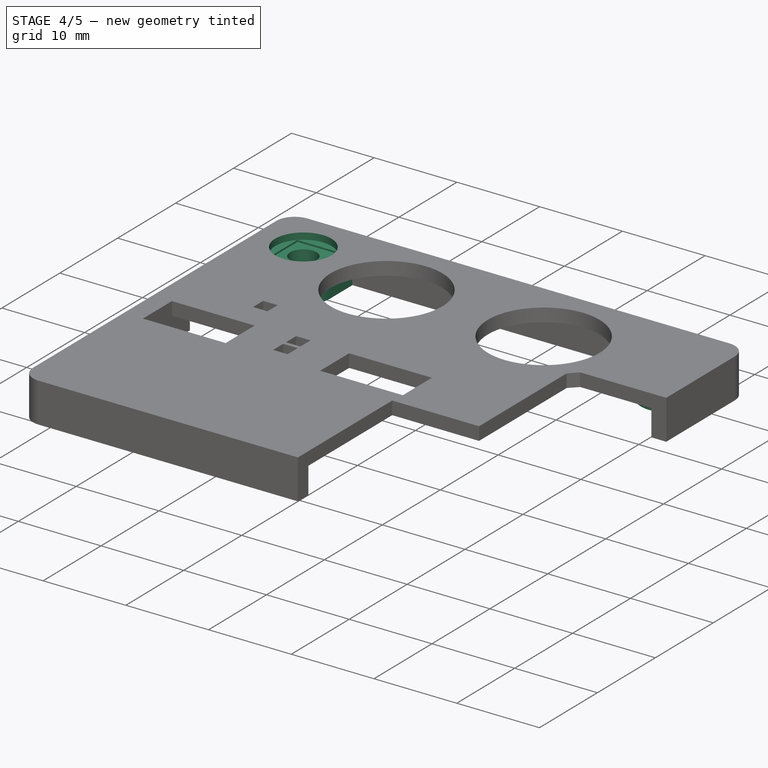
[diagram: stage 4 of 5 — iso view after this stage's code; geometry added in this stage tinted green]
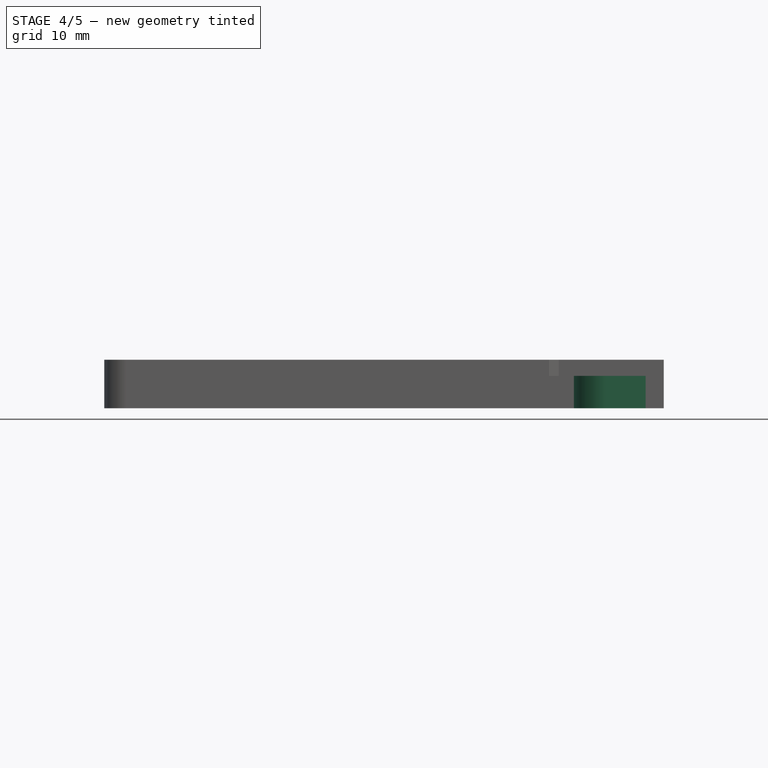
[diagram: stage 4 of 5 — front view after this stage's code; geometry added in this stage tinted green]
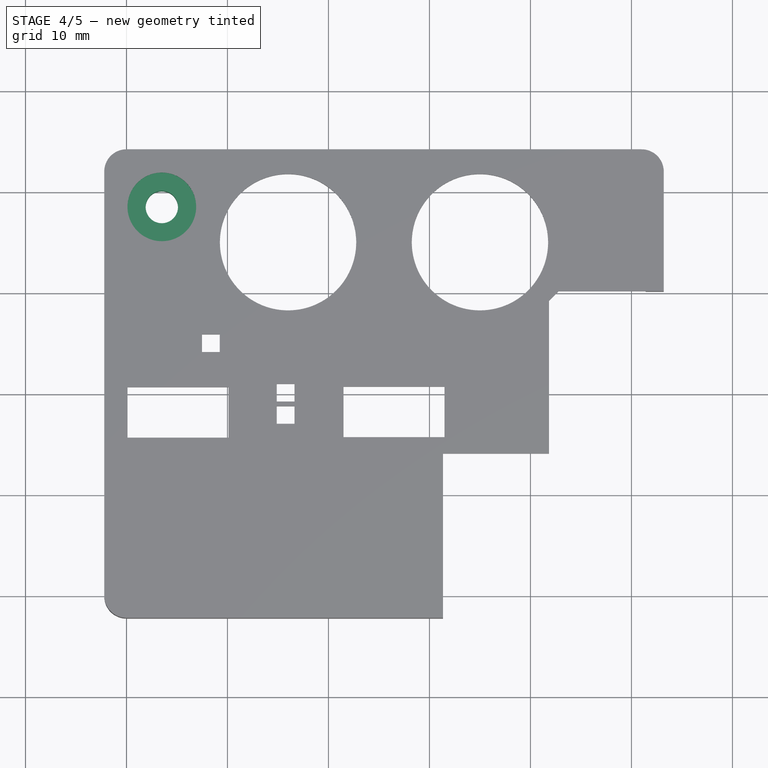
[diagram: stage 4 of 5 — top view after this stage's code; geometry added in this stage tinted green]
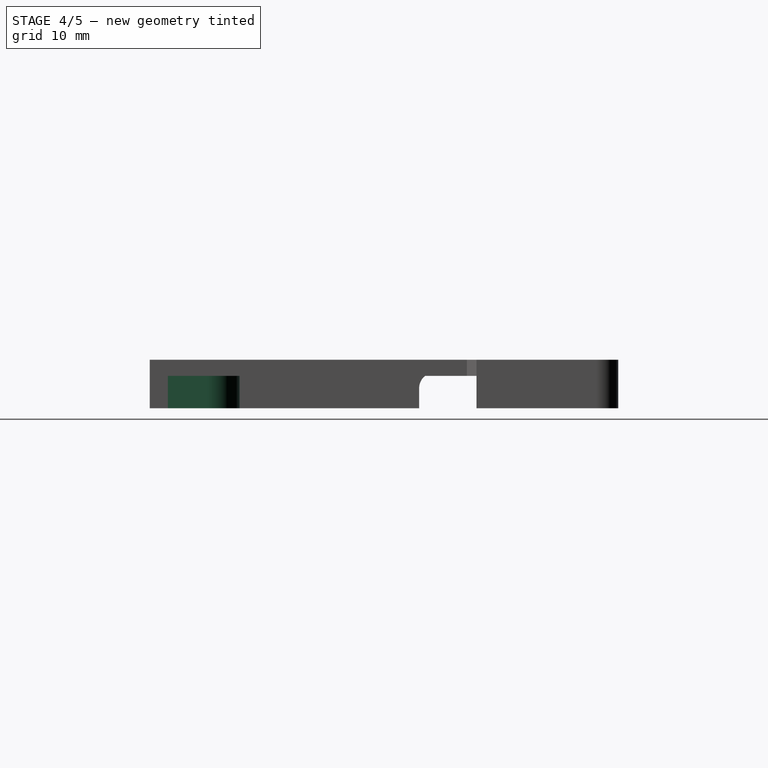
[diagram: stage 4 of 5 — right view after this stage's code; geometry added in this stage tinted green]
FEATURE [PartDesign::SubShapeBinder] Binder005  label="PCBSupportBinder"
  BindCopyOnChange = 0
  BindMode = 0
  ClaimChildren = false
  Context = -> Body001 [Binder005.]
  Fuse = false
  MakeFace = true
  OffsetFill = false
  OffsetIntersection = false
  OffsetJoinType = 0
  OffsetOpenResult = false
  PartialLoad = false
  Relative = true
  Support = -> [Body[Pad001.Face19]]
  _Version = 2
FEATURE [PartDesign::Plane] DatumPlane004  label="TopLidDatumPlane"
  Length = 92.9125
  MapMode = 5
  Placement = pos=(0,0,4.8) rot=(0,0,1;0rad)
  ResizeMode = 0
  Support = -> [Pocket008]
  Width = 83.9125
FEATURE [Sketcher::SketchObject] Sketch012  label="ScrewHoleSketch"
  ExternalGeometry = -> [Binder003]
  FullyConstrained = true
  MapMode = 5
  Placement = pos=(0,0,4.8) rot=(0,0,1;0rad)
  Support = -> [DatumPlane004]
  sketch-geometry (1):
    g0: Circle CenterX=3.5 CenterY=38.5 CenterZ=0 NormalX=0 NormalY=0 NormalZ=1 AngleXU=0 Radius=1.6
  constraints (2):
    c: Coincident(g0,g-4)
    c: PointOnObject(g-3,g0)
FEATURE [PartDesign::SubShapeBinder] Binder006  label="PCBBinder"
  BindCopyOnChange = 0
  BindMode = 0
  ClaimChildren = false
  Context = -> Body001 [Binder006.]
  Fuse = false
  MakeFace = true
  OffsetFill = false
  OffsetIntersection = false
  OffsetJoinType = 0
  OffsetOpenResult = false
  PartialLoad = false
  Relative = true
  Support = -> [Link[Board_Geoms_3e51.Pcb_3e51.Face46]]
  _Version = 2
FEATURE [Sketcher::SketchObject] Sketch013  label="ScrewSupportSketch"
  ExternalGeometry = -> [Binder003,Binder001]
  FullyConstrained = true
  MapMode = 5
  Support = -> [XY_Plane001]
  sketch-geometry (15):
    g0: ArcOfCircle CenterX=3.5 CenterY=38.5 CenterZ=0 NormalX=0 NormalY=0 NormalZ=1 AngleXU=0 Radius=3.2 StartAngle=4.71239 EndAngle=6.28319
    g1: LineSegment StartX=6.7 StartY=38.5 StartZ=0 EndX=6.7 EndY=42.4 EndZ=0
    g2: LineSegment StartX=3.5 StartY=35.3 StartZ=0 EndX=-0.4 EndY=35.3 EndZ=0
    g3: LineSegment StartX=-0.4 StartY=35.3 StartZ=0 EndX=-0.4 EndY=42.4 EndZ=0
    g4: LineSegment StartX=6.7 StartY=42.4 StartZ=0 EndX=-0.4 EndY=42.4 EndZ=0
    g5: ArcOfCircle CenterX=47.5 CenterY=38.5 CenterZ=0 NormalX=0 NormalY=0 NormalZ=1 AngleXU=0 Radius=3.2 StartAngle=3.14159 EndAngle=4.71239
    g6: ArcOfCircle CenterX=3.5 CenterY=3.5 CenterZ=0 NormalX=0 NormalY=0 NormalZ=1 AngleXU=0 Radius=3.2 StartAngle=0 EndAngle=1.5708
    g7: LineSegment StartX=6.7 StartY=3.5 StartZ=0 EndX=6.7 EndY=-0.4 EndZ=0
    g8: LineSegment StartX=3.5 StartY=6.7 StartZ=0 EndX=-0.4 EndY=6.7 EndZ=0
    g9: LineSegment StartX=-0.4 StartY=6.7 StartZ=0 EndX=-0.4 EndY=-0.4 EndZ=0
    g10: LineSegment StartX=6.7 StartY=-0.4 StartZ=0 EndX=-0.4 EndY=-0.4 EndZ=0
    g11: LineSegment StartX=44.3 StartY=38.5 StartZ=0 EndX=44.3 EndY=42.4 EndZ=0
    g12: LineSegment StartX=47.5 StartY=35.3 StartZ=0 EndX=51.4 EndY=35.3 EndZ=0
    g13: LineSegment StartX=51.4 StartY=35.3 StartZ=0 EndX=51.4 EndY=42.4 EndZ=0
    g14: LineSegment StartX=44.3 StartY=42.4 StartZ=0 EndX=51.4 EndY=42.4 EndZ=0
  constraints (40):
    c: Coincident(g0,g-4)
    c: Angle(g0) = 1.5708
    c: PointOnObject(g1,g-5)
    c: Vertical(g1)
    c: Coincident(g2,g0)
    c: PointOnObject(g2,g-6)
    c: Horizontal(g2)
    c: Coincident(g3,g2)
    c: Vertical(g3)
    c: Coincident(g4,g1)
    c: Coincident(g4,g3)
    c: Horizontal(g4)
    c: Coincident(g5,g-7)
    c: Coincident(g6,g-8)
    c: Equal(g5,g6)
    c: Equal(g6,g0)
    c: PointOnObject(g7,g-9)
    c: Vertical(g7)
    c: PointOnObject(g8,g-6)
    c: Horizontal(g8)
    c: Coincident(g9,g8)
    c: Vertical(g9)
    c: Coincident(g10,g7)
    c: Coincident(g10,g9)
    c: Horizontal(g10)
    c: PointOnObject(g11,g-5)
    c: Vertical(g11)
    c: PointOnObject(g12,g-10)
    c: Horizontal(g12)
    c: Coincident(g13,g12)
    c: Vertical(g13)
    c: Coincident(g14,g11)
    c: Coincident(g14,g13)
    c: Horizontal(g14)
    c: Radius(g0) = 3.2
    c: Tangent(g11,g5) = 1.5708
    c: Tangent(g7,g6) = 1.5708
    c: Tangent(g12,g5) = -1.5708
    c: Tangent(g1,g0) = -1.5708
    c: Tangent(g8,g6) = -1.5708
FEATURE [PartDesign::Pad] Pad004  label="ScrewSupportPad"
  BaseFeature = -> Pocket008
  Direction = (0,0,1)
  Length = 4.8
  Length2 = 10
  Profile = -> Sketch013
  ReferenceAxis = -> Sketch013 [N_Axis]
  Type = 0
  expr: Length = <<WallsPad>>.Length
FEATURE [PartDesign::SubShapeBinder] Binder007
  BindCopyOnChange = 0
  BindMode = 0
  ClaimChildren = false
  Fuse = false
  MakeFace = true
  OffsetFill = false
  OffsetIntersection = false
  OffsetJoinType = 0
  OffsetOpenResult = false
  PartialLoad = false
  Relative = true
  Support = -> <blob elided: 519 chars, md5=92d80a39>
  _Version = 2
FEATURE [Sketcher::SketchObject] Sketch014  label="USBSketch"
  ExternalGeometry = -> [Binder007]
  FullyConstrained = true
  MapMode = 5
  Placement = pos=(-0.4,0,0) rot=(0.57735,0.57735,0.57735;2.0944rad)
  sketch-geometry (8):
    g0: ArcOfCircle CenterX=26.03 CenterY=1.985 CenterZ=0 NormalX=0 NormalY=0 NormalZ=1 AngleXU=0 Radius=1.55 StartAngle=1.5708 EndAngle=3.14159
    g1: ArcOfCircle CenterX=32.47 CenterY=1.985 CenterZ=0 NormalX=0 NormalY=0 NormalZ=1 AngleXU=0 Radius=1.55 StartAngle=0 EndAngle=1.5708
    g2: LineSegment StartX=24.48 StartY=1.985 StartZ=0 EndX=24.48 EndY=0 EndZ=0
    g3: LineSegment StartX=24.48 StartY=0 StartZ=0 EndX=34.02 EndY=0 EndZ=0
    g4: LineSegment StartX=34.02 StartY=0 StartZ=0 EndX=34.02 EndY=1.985 EndZ=0
    g5: LineSegment StartX=26.03 StartY=3.535 StartZ=0 EndX=32.47 EndY=3.535 EndZ=0
    g6: LineSegment StartX=24.78 StartY=1.985 StartZ=0 EndX=24.48 EndY=1.985 EndZ=0
    g7: LineSegment StartX=33.72 StartY=1.985 StartZ=0 EndX=34.02 EndY=1.985 EndZ=0
  constraints (21):
    c: Coincident(g0,g-6)
    c: Coincident(g1,g-7)
    c: Equal(g1,g0)
    c: Angle(g0) = 1.5708
    c: Coincident(g2,g0)
    c: PointOnObject(g2,g-1)
    c: Vertical(g2)
    c: Coincident(g3,g2)
    c: PointOnObject(g3,g-1)
    c: Coincident(g4,g3)
    c: Coincident(g4,g1)
    c: Vertical(g4)
    c: Coincident(g5,g0)
    c: Tangent(g5,g1) = 1.5708
    c: Coincident(g6,g-6)
    c: Coincident(g6,g0)
    c: Horizontal(g6)
    c: DistanceX(g6,g6) = 0.3
    c: Coincident(g7,g-7)
    c: Coincident(g7,g1)
    c: Horizontal(g7)
FEATURE [PartDesign::Pocket] Pocket009  label="USBCutoutPocket"
  BaseFeature = -> Pad004
  Direction = (-1,0,0)
  Length = 5
  Length2 = 6.5
  Profile = -> Sketch014
  ReferenceAxis = -> Sketch014 [N_Axis]
  Type = 4
FEATURE [Sketcher::SketchObject] Sketch015  label="CounterSunkSketch"
  ExternalGeometry = -> [Binder006]
  FullyConstrained = true
  MapMode = 5
  Placement = pos=(0,0,4.8) rot=(0,0,1;0rad)
  Support = -> [DatumPlane004]
  sketch-geometry (1):
    g0: Circle CenterX=3.5 CenterY=38.5 CenterZ=0 NormalX=0 NormalY=0 NormalZ=1 AngleXU=0 Radius=3.4
  constraints (2):
    c: Coincident(g0,g-3)
    c: Radius(g0) = 3.4
FEATURE [PartDesign::Pocket] Pocket010  label="ScrewHolePocket"
  BaseFeature = -> Pocket009
  Direction = (0,0,-1)
  Length = 5
  Length2 = 5
  Profile = -> Sketch012
  ReferenceAxis = -> Sketch012 [N_Axis]
  Type = 1
FEATURE [Sketcher::SketchObject] Sketch016  label="CounterSunkMidAir1Sketch"
  AttachmentOffset = pos=(0,0,-0.8) rot=(0,0,1;0rad)
  ExternalGeometry = -> [Binder006,Sketch015]
  FullyConstrained = true
  MapMode = 5
  Placement = pos=(0,0,4) rot=(0,0,1;0rad)
  Support = -> [DatumPlane004]
  expr: .AttachmentOffset.Base.z = -Spreadsheet.lid_counter_sunk
  sketch-geometry (4):
    g0: LineSegment StartX=1.09584 StartY=40.9042 StartZ=0 EndX=5.90416 EndY=40.9042 EndZ=0
    g1: LineSegment StartX=5.90416 StartY=40.9042 StartZ=0 EndX=5.90416 EndY=36.0958 EndZ=0
    g2: LineSegment StartX=5.90416 StartY=36.0958 StartZ=0 EndX=1.09584 EndY=36.0958 EndZ=0
    g3: LineSegment StartX=1.09584 StartY=36.0958 StartZ=0 EndX=1.09584 EndY=40.9042 EndZ=0
  constraints (11):
    c: Coincident(g0,g1)
    c: Coincident(g1,g2)
    c: Coincident(g2,g3)
    c: Coincident(g3,g0)
    c: Horizontal(g0)
    c: Horizontal(g2)
    c: Vertical(g1)
    c: Vertical(g3)
    c: Equal(g1,g2)
    c: Symmetric(g1,g0,g-3)
    c: PointOnObject(g1,g-4)
FEATURE [Sketcher::SketchObject] Sketch017  label="CounterSunkMidAir2Sketch"
  AttachmentOffset = pos=(0,0,-1) rot=(0,0,1;0rad)
  ExternalGeometry = -> [Binder006,Sketch015,Sketch016]
  FullyConstrained = true
  MapMode = 5
  Placement = pos=(0,0,3.8) rot=(0,0,1;0rad)
  Support = -> [DatumPlane004]
  expr: .AttachmentOffset.Base.z = -Spreadsheet.lid_counter_sunk - Spreadsheet.lid_layer_height
  sketch-geometry (5):
    g0: LineSegment StartX=1.09584 StartY=38.5 StartZ=0 EndX=3.5 EndY=36.0958 EndZ=0
    g1: LineSegment StartX=3.5 StartY=36.0958 StartZ=0 EndX=5.90416 EndY=38.5 EndZ=0
    g2: LineSegment StartX=5.90416 StartY=38.5 StartZ=0 EndX=3.5 EndY=40.9042 EndZ=0
    g3: LineSegment StartX=3.5 StartY=40.9042 StartZ=0 EndX=1.09584 EndY=38.5 EndZ=0
    g4: GeomPoint X=3.5 Y=38.5 Z=0
  constraints (9):
    c: Coincident(g0,g1)
    c: Coincident(g2,g3)
    c: Coincident(g3,g0)
    c: Symmetric(g1,g0,g4)
    c: Coincident(g4,g-4)
    c: Symmetric(g-5,g-6,g1)
    c: Symmetric(g-5,g-5,g2)
    c: Coincident(g2,g1)
    c: Symmetric(g-6,g-6,g0)
FEATURE [PartDesign::Pocket] Pocket011  label="CounterSunkPocket"
  BaseFeature = -> Pocket010
  Direction = (0,0,-1)
  Length = 0.8
  Length2 = 5
  Profile = -> Sketch015
  ReferenceAxis = -> Sketch015 [N_Axis]
  Type = 0
  expr: Length = Spreadsheet.lid_counter_sunk
FEATURE [PartDesign::Pocket] Pocket012  label="CounterSunkMidAir1SketchPocket"
  BaseFeature = -> Pocket011
  Direction = (0,0,-1)
  Length = 0.2
  Length2 = 5
  Profile = -> Sketch016
  ReferenceAxis = -> Sketch016 [N_Axis]
  Type = 0
  expr: Length = Spreadsheet.lid_layer_height
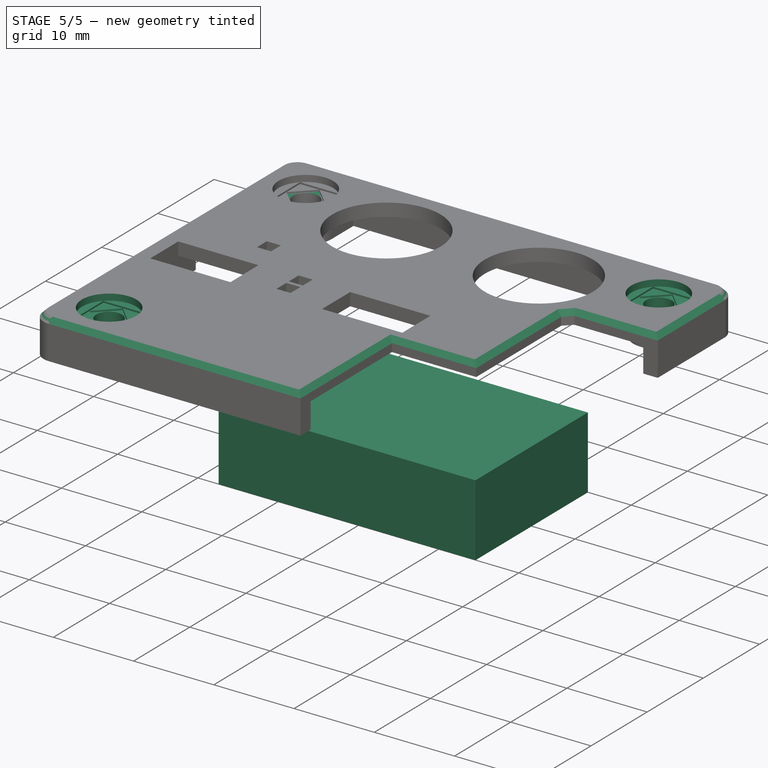
[diagram: stage 5 of 5 — iso view after this stage's code; geometry added in this stage tinted green]
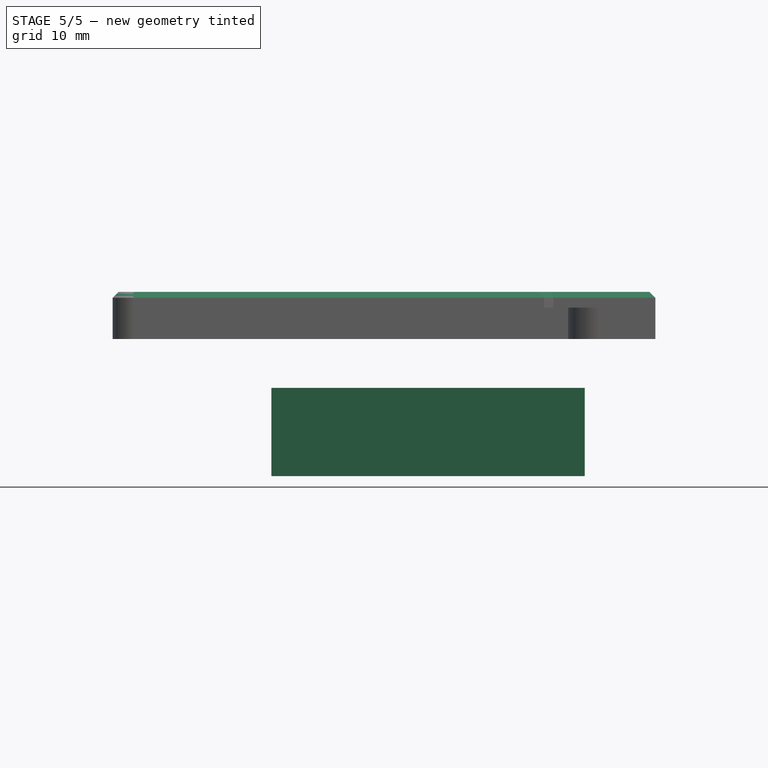
[diagram: stage 5 of 5 — front view after this stage's code; geometry added in this stage tinted green]
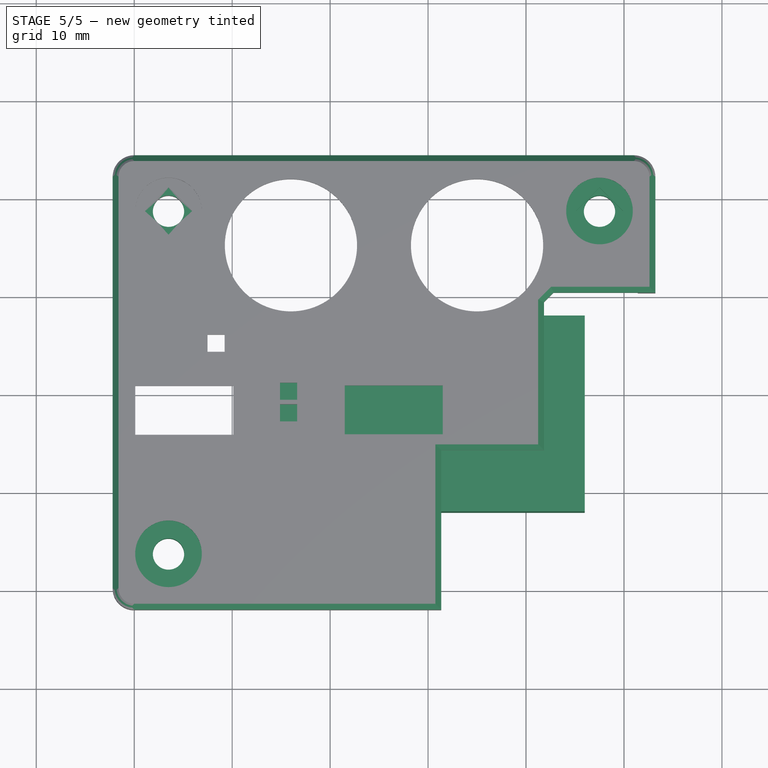
[diagram: stage 5 of 5 — top view after this stage's code; geometry added in this stage tinted green]
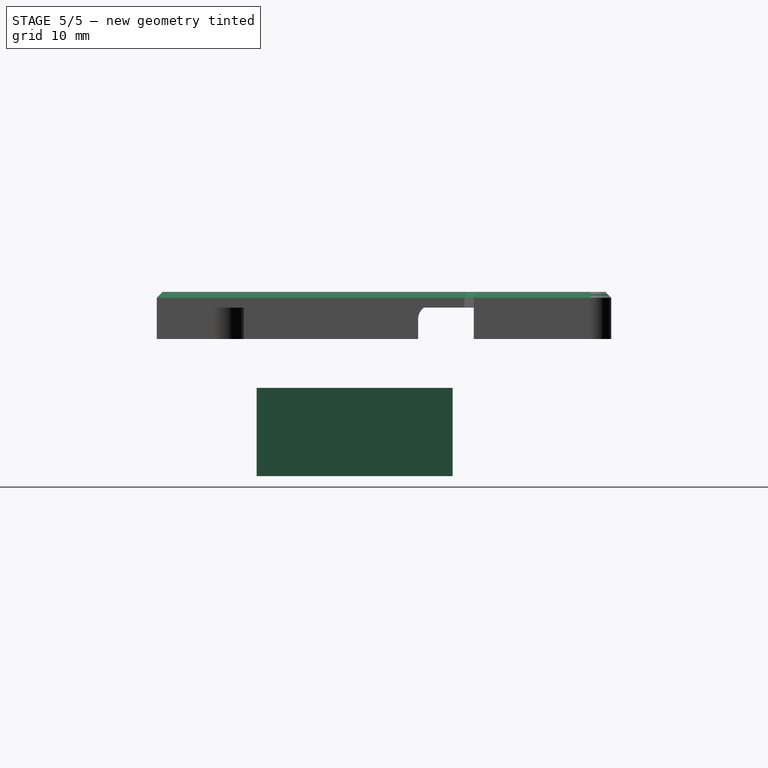
[diagram: stage 5 of 5 — right view after this stage's code; geometry added in this stage tinted green]
FEATURE [Part::Box] Box  label="LiPo_Battery"
  AttacherType = Attacher::AttachEngine3D
  Height = 9
  Length = 32
  Placement = pos=(14,8,-14) rot=(0,0,1;0rad)
  Width = 20
FEATURE [PartDesign::Pocket] Pocket013  label="CounterSunkMidAir2SketchPocket"
  BaseFeature = -> Pocket012
  Direction = (0,0,-1)
  Length = 0.2
  Length2 = 5
  Profile = -> Sketch017
  ReferenceAxis = -> Sketch017 [N_Axis]
  Type = 0
  expr: Length = Spreadsheet.lid_layer_height
FEATURE [Sketcher::SketchObject] Sketch018  label="DatumPlanReferenceSketch"
  ExternalGeometry = -> [Binder006]
  FullyConstrained = true
  MapMode = 5
  Support = -> [XY_Plane001]
  sketch-geometry (4):
    g0: LineSegment StartX=0 StartY=42 StartZ=0 EndX=0 EndY=21 EndZ=0
    g1: LineSegment StartX=0 StartY=42 StartZ=0 EndX=25.5 EndY=42 EndZ=0
    g2: LineSegment StartX=25.5 StartY=42 StartZ=0 EndX=51 EndY=42 EndZ=0
    g3: LineSegment StartX=0 StartY=0 StartZ=0 EndX=0 EndY=21 EndZ=0
  constraints (10):
    c: Coincident(g0,g-4)
    c: PointOnObject(g0,g-4)
    c: Coincident(g1,g0)
    c: PointOnObject(g1,g-3)
    c: Coincident(g2,g1)
    c: Coincident(g2,g-3)
    c: Coincident(g3,g-4)
    c: Coincident(g3,g0)
    c: Equal(g2,g1)
    c: Equal(g0,g3)
FEATURE [PartDesign::Plane] DatumPlane005  label="PCBMidpointXDatumPlane"
  Length = 80.9644
  MapMode = 7
  Placement = pos=(25.5,42,0) rot=(0.57735,-0.57735,-0.57735;2.0944rad)
  ResizeMode = 0
  Support = -> [Sketch018]
  Width = 61.7644
FEATURE [PartDesign::Plane] DatumPlane006  label="PCBMidpointYDatumPlane"
  Length = 90.706
  MapMode = 1
  Placement = pos=(0,21,0) rot=(0,0.707107,0.707107;3.14159rad)
  ResizeMode = 0
  Support = -> [Sketch018]
  Width = 62.506
FEATURE [PartDesign::Mirrored] Mirrored002
  MirrorPlane = -> DatumPlane005
FEATURE [PartDesign::Mirrored] Mirrored003
  MirrorPlane = -> DatumPlane006
FEATURE [PartDesign::MultiTransform] MultiTransform001
  BaseFeature = -> Pocket013
  Originals = -> [Pocket013,Pocket010,Pocket011,Pocket012]
  Transformations = -> [Mirrored002,Mirrored003]
FEATURE [PartDesign::Chamfer] Chamfer
  Angle = 45
  Base = -> MultiTransform001 [Edge52,Edge51,Edge111,Edge110,Edge109,Edge108,Edge107,Edge82,Edge34,Edge33,Edge32,Edge7,Edge4,Edge15,Edge53]
  BaseFeature = -> MultiTransform001
  ChamferType = 0
  FlipDirection = false
  Size = 0.6
  Size2 = 1
  SupportTransform = false
  UseAllEdges = false
FEATURE [PartDesign::Body] Body001  label="Lid"
  Group = -> [Binder001,Pad002,Sketch007,Pad003,Binder003,Sketch011,Binder004,Pocket008,DatumPlane004,Binder005,Binder006,Sketch018,DatumPlane005,DatumPlane006,Sketch013,Pad004,Binder007,Sketch014,Pocket009,Sketch012,Sketch015,Pocket010,Sketch016,Sketch017,Pocket011,Pocket012,Pocket013,MultiTransform001,Mirrored002,Mirrored003,Chamfer]
  Origin = -> Origin001
  Tip = -> Chamfer
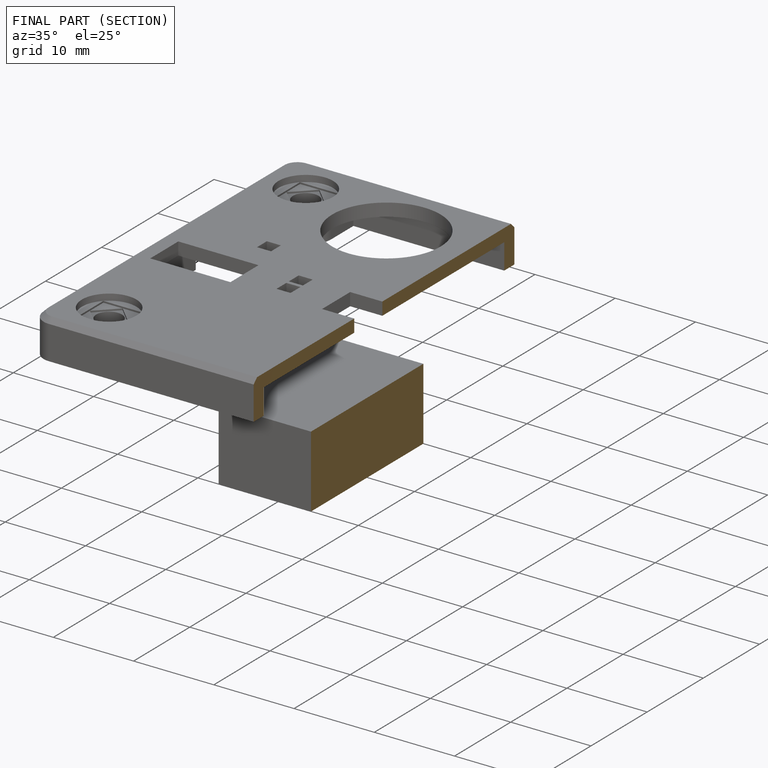
[diagram: finished part — half-section view (interior)]
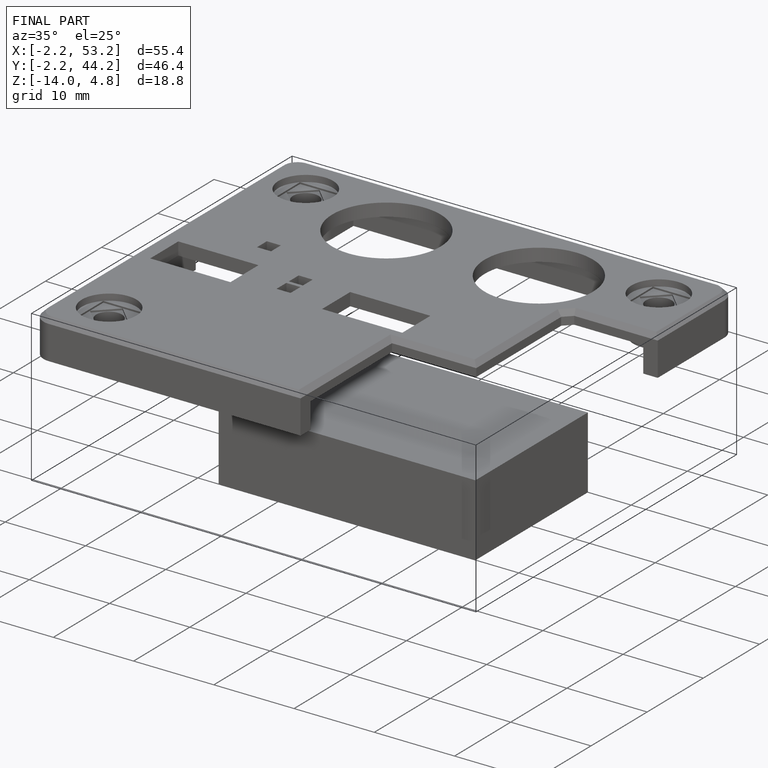
[diagram: finished part — iso view with bounding-box wireframe]
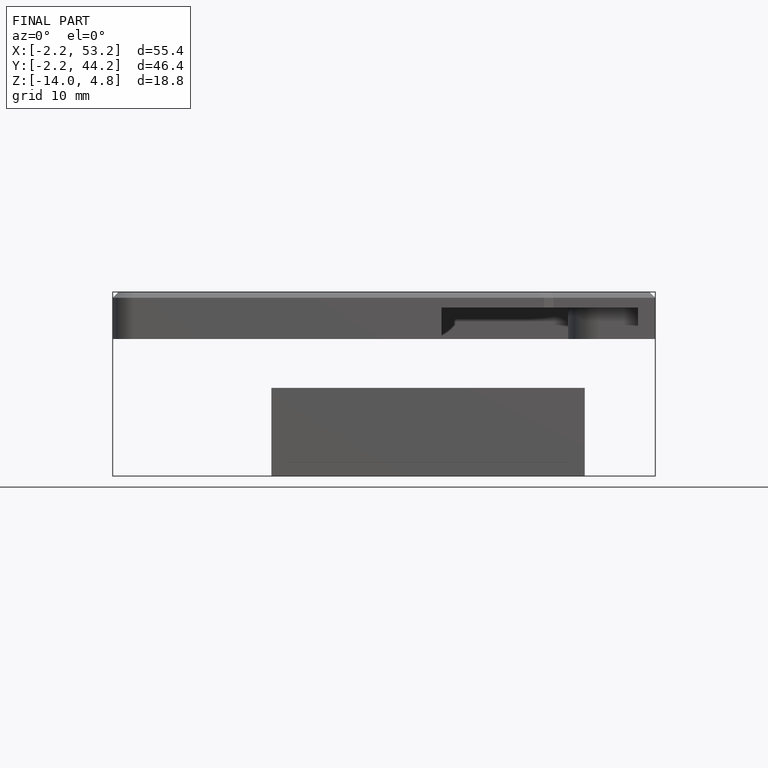
[diagram: finished part — front view with bounding-box wireframe]
